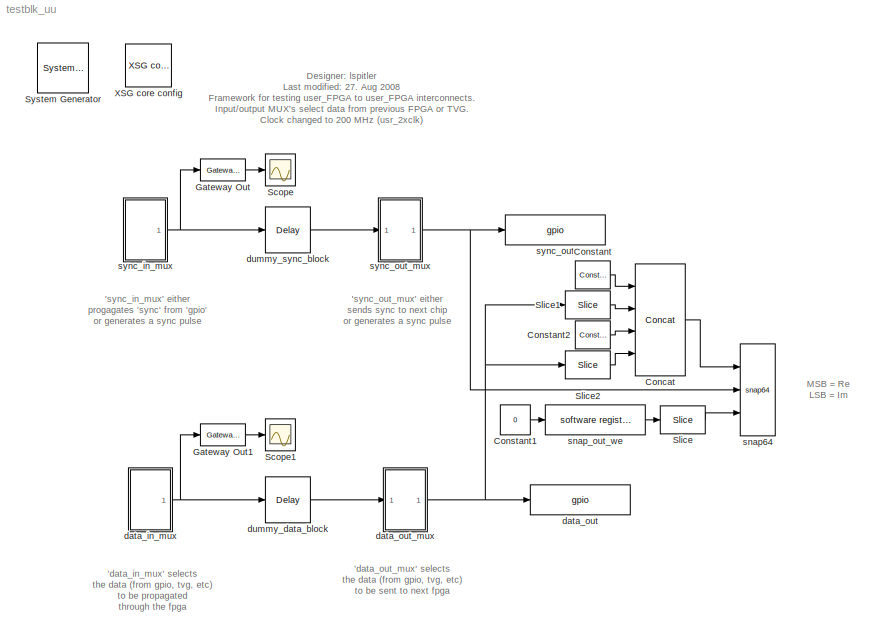
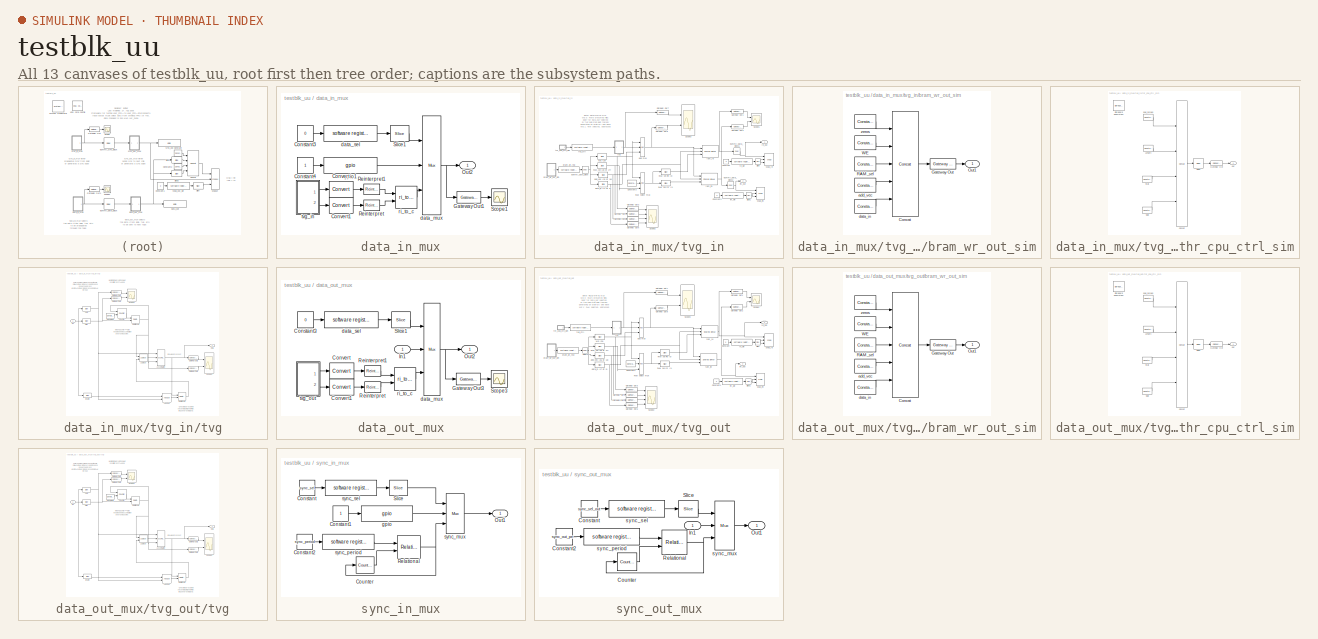
[diagram: thumbnail index - all 13 canvases of the model, root first then tree order]
MODEL testblk_uu
KIND model
BLOCK [Reference]  System Generator  REF=xbsIndex_r3/ System Generator
  AttributesFormatString = System\\nGenerator
  Ports = []
  ShowPortLabels = on
  SourceBlock = xbsIndex_r3/ System Generator
  SourceType = Xilinx System Generator
  Tag = genX
  UserData = DataTag0
  UserDataPersistent = on
  core_generation = According to Block Masks
  dbl_ovrd = According to Block Masks
  deprecated_control = off
  directory = ./testblk_uu/sysgen
  eval_field = 0
  incr_netlist = off
  package = ff1704
  part = xc2vp70
  run_coregen = off
  simulink_period = 1
  speed = -7
  synthesis_tool = XST
  sysclk_period = 5
  testbench = off
  trim_vbits = Everywhere in SubSystem
  xilinxfamily = Virtex2P
BLOCK [Reference] Concat  REF=xbsIndex_r3/Concat
  Ports = [4, 1]
  SourceBlock = xbsIndex_r3/Concat
  SourceType = Xilinx Bus Concatenator
  dbl_ovrd = off
  explicit_period = on
  num_inputs = 4
  period = 1
BLOCK [Reference] Constant  REF=xbsIndex_r3/Constant
  Ports = [0, 1]
  SourceBlock = xbsIndex_r3/Constant
  SourceType = Xilinx Constant Block
  arith_type = Unsigned
  bin_pt = 0
  carry = CIN
  const = 0
  dbl_ovrd = off
  equ = P=C
  explicit_period = on
  inp1 = P
  inp2 = PCIN>>17
  iostate = 0
  n_bits = 14
  opr = +
  opselect = C
  period = 1
BLOCK [Constant] Constant1
  Value = 0
BLOCK [Reference] Constant2  REF=xbsIndex_r3/Constant
  Ports = [0, 1]
  SourceBlock = xbsIndex_r3/Constant
  SourceType = Xilinx Constant Block
  arith_type = Unsigned
  bin_pt = 0
  carry = CIN
  const = 0
  dbl_ovrd = off
  equ = P=C
  explicit_period = on
  inp1 = P
  inp2 = PCIN>>17
  iostate = 0
  n_bits = 14
  opr = +
  opselect = C
  period = 1
BLOCK [Reference] Gateway Out  REF=xbsIndex_r3/Gateway Out
  LOCs = {}
  Ports = [1, 1]
  SourceBlock = xbsIndex_r3/Gateway Out
  SourceType = Xilinx Gateway Out
  arith_type = Boolean
  bin_pt = 6
  hdl_port = on
  locs_specified = off
  nbits = 8
  needs_fixed_name = off
  output_type = Double
  overflow = Wrap
  quantization = Truncate
  show_param = off
  timing_constraint = None
  xl_area = [0, 0, 0, 0, 0, 0, 0]
  xl_use_area = off
BLOCK [Reference] Gateway Out1  REF=xbsIndex_r3/Gateway Out
  LOCs = {}
  Ports = [1, 1]
  SourceBlock = xbsIndex_r3/Gateway Out
  SourceType = Xilinx Gateway Out
  arith_type = Boolean
  bin_pt = 6
  hdl_port = on
  locs_specified = off
  nbits = 8
  needs_fixed_name = off
  output_type = Double
  overflow = Wrap
  quantization = Truncate
  show_param = off
  timing_constraint = None
  xl_area = [0, 0, 0, 0, 0, 0, 0]
  xl_use_area = off
BLOCK [Scope] Scope
  DataFormat = StructureWithTime
  NumInputPorts = 1
  Ports = [1]
  SaveName = ScopeData3
  ZoomMode = xonly
BLOCK [Scope] Scope1
  DataFormat = StructureWithTime
  NumInputPorts = 1
  Ports = [1]
  SaveName = ScopeData5
BLOCK [Reference] Slice  REF=xbsIndex_r3/Slice
  Ports = [1, 1]
  SourceBlock = xbsIndex_r3/Slice
  SourceType = Xilinx Slice Block
  base0 = LSB of Input
  base1 = MSB of Input
  bit0 = 0
  bit1 = 0
  boolean_output = on
  dbl_ovrd = off
  explicit_period = off
  mode = Lower Bit Location + Width
  nbits = 1
  period = 1
BLOCK [Reference] Slice1  REF=xbsIndex_r3/Slice
  Ports = [1, 1]
  SourceBlock = xbsIndex_r3/Slice
  SourceType = Xilinx Slice Block
  base0 = LSB of Input
  base1 = MSB of Input
  bit0 = 0
  bit1 = 0
  boolean_output = off
  dbl_ovrd = off
  explicit_period = on
  mode = Upper Bit Location + Width
  nbits = 18
  period = 1
BLOCK [Reference] Slice2  REF=xbsIndex_r3/Slice
  Ports = [1, 1]
  SourceBlock = xbsIndex_r3/Slice
  SourceType = Xilinx Slice Block
  base0 = LSB of Input
  base1 = MSB of Input
  bit0 = 0
  bit1 = 0
  boolean_output = off
  dbl_ovrd = off
  explicit_period = on
  mode = Lower Bit Location + Width
  nbits = 18
  period = 1
BLOCK [Reference] XSG core config  REF=xps_library/XSG core config  (lib defined in mdl_00b5cec29cd0, mdl_02ab6ecaa3d1, +5 more)
  Ports = []
  ShowPortLabels = on
  SourceBlock = xps_library/XSG core config
  SourceType = xsg core config
  Tag = xps:xsg
  clk_rate = 200
  clk_src = usr_clk2x
  gpio_clk_bit_index = 0
  gpio_clk_io_group = iBOB:sma
  hw_sys = BEE2_usr
  ibob_linux = off
  mpc_type = powerpc405
  sample_period = 1
  synthesis_tool = XST
BLOCK [SubSystem] data_in_mux
  MaskIconFrame = on
  MaskIconOpaque = on
  MaskIconRotate = none
  MaskIconUnits = autoscale
  MaskValueString = 3
  MinAlgLoopOccurrences = off
  Ports = [0, 1]
  RTWSystemCode = Auto
  TreatAsAtomicUnit = off
BLOCK [Constant] data_in_mux/Constant3
  Value = 0
BLOCK [Constant] data_in_mux/Constant4
BLOCK [Reference] data_in_mux/Convert  REF=xbsIndex_r3/Convert
  Ports = [1, 1]
  SourceBlock = xbsIndex_r3/Convert
  SourceType = Xilinx Converter Block
  arith_type = Unsigned
  bin_pt = 0
  dbl_ovrd = off
  explicit_period = on
  inserted_by_tool = off
  latency = 0
  n_bits = 18
  overflow = Wrap
  period = 1
  pipeline = off
  quantization = Truncate
  show_param = off
  xl_area = [0, 0, 0, 0, 0, 0, 0]
  xl_use_area = off
BLOCK [Reference] data_in_mux/Convert1  REF=xbsIndex_r3/Convert
  Ports = [1, 1]
  SourceBlock = xbsIndex_r3/Convert
  SourceType = Xilinx Converter Block
  arith_type = Unsigned
  bin_pt = 0
  dbl_ovrd = off
  explicit_period = on
  inserted_by_tool = off
  latency = 0
  n_bits = 18
  overflow = Wrap
  period = 1
  pipeline = off
  quantization = Truncate
  show_param = off
  xl_area = [0, 0, 0, 0, 0, 0, 0]
  xl_use_area = off
BLOCK [Reference] data_in_mux/Gateway Out1  REF=xbsIndex_r3/Gateway Out
  LOCs = {}
  Ports = [1, 1]
  SourceBlock = xbsIndex_r3/Gateway Out
  SourceType = Xilinx Gateway Out
  arith_type = Boolean
  bin_pt = 6
  hdl_port = on
  locs_specified = off
  nbits = 8
  needs_fixed_name = off
  output_type = Double
  overflow = Wrap
  quantization = Truncate
  show_param = off
  timing_constraint = None
  xl_area = [0, 0, 0, 0, 0, 0, 0]
  xl_use_area = off
BLOCK [Outport] data_in_mux/Out2
  BusOutputAsStruct = off
  IconDisplay = Port number
BLOCK [Reference] data_in_mux/Reinterpret  REF=xbsIndex_r3/Reinterpret
  Ports = [1, 1]
  SourceBlock = xbsIndex_r3/Reinterpret
  SourceType = Xilinx Type Reinterpreting Block
  arith_type = Signed  (2's comp)
  bin_pt = 17
  force_arith_type = on
  force_bin_pt = on
  force_valid = on
BLOCK [Reference] data_in_mux/Reinterpret1  REF=xbsIndex_r3/Reinterpret
  Ports = [1, 1]
  SourceBlock = xbsIndex_r3/Reinterpret
  SourceType = Xilinx Type Reinterpreting Block
  arith_type = Signed  (2's comp)
  bin_pt = 17
  force_arith_type = on
  force_bin_pt = on
  force_valid = on
BLOCK [Scope] data_in_mux/Scope1
  DataFormat = StructureWithTime
  NumInputPorts = 1
  Ports = [1]
  SaveName = ScopeData8
BLOCK [Reference] data_in_mux/Slice1  REF=xbsIndex_r3/Slice
  Ports = [1, 1]
  SourceBlock = xbsIndex_r3/Slice
  SourceType = Xilinx Slice Block
  base0 = LSB of Input
  base1 = MSB of Input
  bit0 = 0
  bit1 = 0
  boolean_output = off
  dbl_ovrd = off
  explicit_period = off
  mode = Lower Bit Location + Width
  nbits = 1
  period = 1
BLOCK [Reference] data_in_mux/data_mux  REF=xbsIndex_r3/Mux
  Ports = [3, 1]
  SourceBlock = xbsIndex_r3/Mux
  SourceType = Xilinx Multiplexer Block
  arith_type = Signed  (2's comp)
  bin_pt = 2
  dbl_ovrd = off
  en = off
  explicit_period = on
  gen_core = off
  inputs = 2
  latency = 0
  mux_type = off
  n_bits = 8
  overflow = Wrap
  period = 1
  precision = Full
  quantization = Truncate
  show_param = off
  use_rpm = off
  xl_area = [0, 0, 0, 0, 0, 0, 0]
  xl_use_area = off
BLOCK [Reference] data_in_mux/data_sel  REF=xps_library/software register  (lib defined in mdl_00b5cec29cd0, mdl_02ab6ecaa3d1, +5 more)
  Ports = [1, 1]
  ShowPortLabels = on
  SourceBlock = xps_library/software register
  Tag = xps:sw_reg
  arith_type = Unsigned
  bin_pt = 0
  bitwidth = 32
  gw_name = testblk_uu_data_in_mux_data_sel_user_data_out
  io_dir = From Processor
  sample_period = 1
BLOCK [Reference] data_in_mux/gpio1  REF=xps_library/gpio  (lib defined in mdl_00b5cec29cd0, mdl_02ab6ecaa3d1, +5 more)
  Ports = [1, 1]
  ShowPortLabels = on
  SourceBlock = xps_library/gpio
  SourceType = gpio
  Tag = xps:gpio
  arith_type = Unsigned
  bin_pt = 0
  bit_index = [0:35]
  bitwidth = 36
  io_dir = in
  io_group = BEE2_usr:rightlink
  reg_clk_phase = 0
  reg_iob = off
  sample_period = 1
  termination = None
  use_ddr = off
  use_single_ended = off
BLOCK [Reference] data_in_mux/ri_to_c  REF=casper_library/Misc/ri_to_c  (lib defined in mdl_138b2fc3435f, mdl_4ed325b712b3, +2 more)
  Ports = [2, 1]
  ShowPortLabels = on
  SourceBlock = casper_library/Misc/ri_to_c
  SourceType = ri_to_c
  UserData = DataTag1
  UserDataPersistent = on
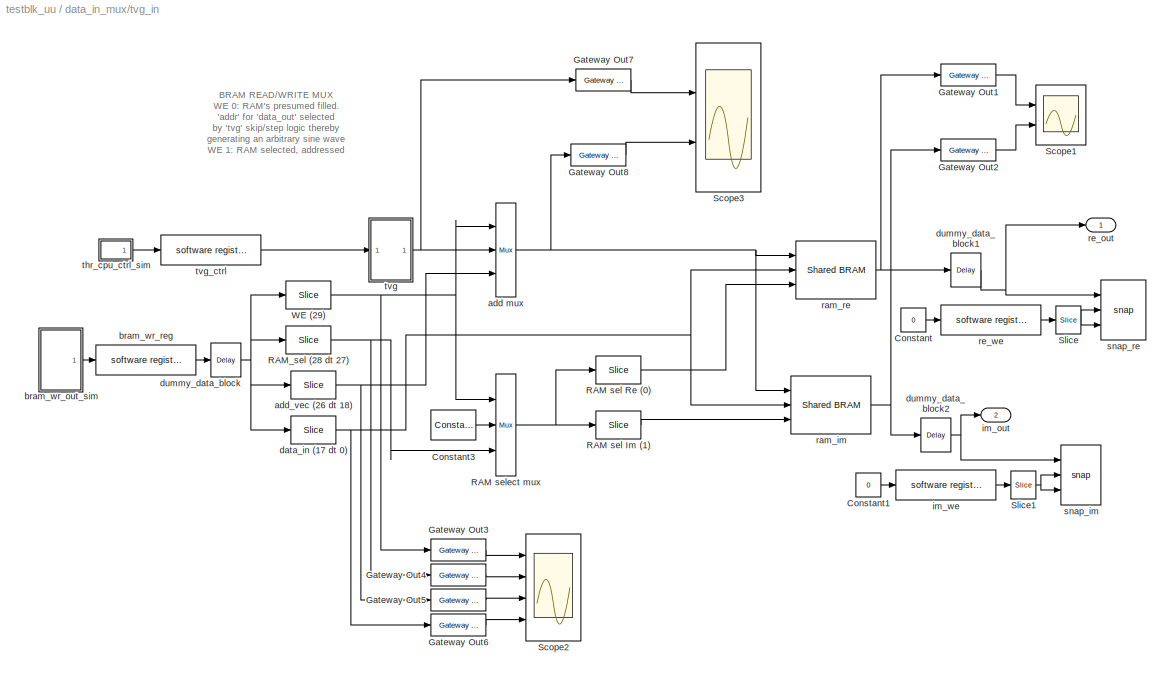
BLOCK [SubSystem] data_in_mux/tvg_in
  MinAlgLoopOccurrences = off
  Ports = [0, 2]
  RTWSystemCode = Auto
  TreatAsAtomicUnit = off
BLOCK [Constant] data_in_mux/tvg_in/Constant
  Value = 0
BLOCK [Constant] data_in_mux/tvg_in/Constant1
  Value = 0
BLOCK [Reference] data_in_mux/tvg_in/Constant3  REF=xbsIndex_r3/Constant
  Ports = [0, 1]
  SourceBlock = xbsIndex_r3/Constant
  SourceType = Xilinx Constant Block
  arith_type = Unsigned
  bin_pt = 0
  carry = CIN
  const = 0
  dbl_ovrd = off
  equ = P=C
  explicit_period = on
  inp1 = P
  inp2 = PCIN>>17
  iostate = 0
  n_bits = 4
  opr = +
  opselect = C
  period = 1
BLOCK [Reference] data_in_mux/tvg_in/Gateway Out1  REF=xbsIndex_r3/Gateway Out
  LOCs = {}
  Ports = [1, 1]
  SourceBlock = xbsIndex_r3/Gateway Out
  SourceType = Xilinx Gateway Out
  arith_type = Boolean
  bin_pt = 6
  hdl_port = on
  locs_specified = off
  nbits = 8
  needs_fixed_name = off
  output_type = Double
  overflow = Wrap
  quantization = Truncate
  show_param = off
  timing_constraint = None
  xl_area = [0, 0, 0, 0, 0, 0, 0]
  xl_use_area = off
BLOCK [Reference] data_in_mux/tvg_in/Gateway Out2  REF=xbsIndex_r3/Gateway Out
  LOCs = {}
  Ports = [1, 1]
  SourceBlock = xbsIndex_r3/Gateway Out
  SourceType = Xilinx Gateway Out
  arith_type = Boolean
  bin_pt = 6
  hdl_port = on
  locs_specified = off
  nbits = 8
  needs_fixed_name = off
  output_type = Double
  overflow = Wrap
  quantization = Truncate
  show_param = off
  timing_constraint = None
  xl_area = [0, 0, 0, 0, 0, 0, 0]
  xl_use_area = off
BLOCK [Reference] data_in_mux/tvg_in/Gateway Out3  REF=xbsIndex_r3/Gateway Out
  LOCs = {}
  Ports = [1, 1]
  SourceBlock = xbsIndex_r3/Gateway Out
  SourceType = Xilinx Gateway Out
  arith_type = Boolean
  bin_pt = 6
  hdl_port = on
  locs_specified = off
  nbits = 8
  needs_fixed_name = off
  output_type = Double
  overflow = Wrap
  quantization = Truncate
  show_param = off
  timing_constraint = None
  xl_area = [0, 0, 0, 0, 0, 0, 0]
  xl_use_area = off
BLOCK [Reference] data_in_mux/tvg_in/Gateway Out4  REF=xbsIndex_r3/Gateway Out
  LOCs = {}
  Ports = [1, 1]
  SourceBlock = xbsIndex_r3/Gateway Out
  SourceType = Xilinx Gateway Out
  arith_type = Boolean
  bin_pt = 6
  hdl_port = on
  locs_specified = off
  nbits = 8
  needs_fixed_name = off
  output_type = Double
  overflow = Wrap
  quantization = Truncate
  show_param = off
  timing_constraint = None
  xl_area = [0, 0, 0, 0, 0, 0, 0]
  xl_use_area = off
BLOCK [Reference] data_in_mux/tvg_in/Gateway Out5  REF=xbsIndex_r3/Gateway Out
  LOCs = {}
  Ports = [1, 1]
  SourceBlock = xbsIndex_r3/Gateway Out
  SourceType = Xilinx Gateway Out
  arith_type = Boolean
  bin_pt = 6
  hdl_port = on
  locs_specified = off
  nbits = 8
  needs_fixed_name = off
  output_type = Double
  overflow = Wrap
  quantization = Truncate
  show_param = off
  timing_constraint = None
  xl_area = [0, 0, 0, 0, 0, 0, 0]
  xl_use_area = off
BLOCK [Reference] data_in_mux/tvg_in/Gateway Out6  REF=xbsIndex_r3/Gateway Out
  LOCs = {}
  Ports = [1, 1]
  SourceBlock = xbsIndex_r3/Gateway Out
  SourceType = Xilinx Gateway Out
  arith_type = Boolean
  bin_pt = 6
  hdl_port = on
  locs_specified = off
  nbits = 8
  needs_fixed_name = off
  output_type = Double
  overflow = Wrap
  quantization = Truncate
  show_param = off
  timing_constraint = None
  xl_area = [0, 0, 0, 0, 0, 0, 0]
  xl_use_area = off
BLOCK [Reference] data_in_mux/tvg_in/Gateway Out7  REF=xbsIndex_r3/Gateway Out
  LOCs = {}
  Ports = [1, 1]
  SourceBlock = xbsIndex_r3/Gateway Out
  SourceType = Xilinx Gateway Out
  arith_type = Boolean
  bin_pt = 6
  hdl_port = on
  locs_specified = off
  nbits = 8
  needs_fixed_name = off
  output_type = Double
  overflow = Wrap
  quantization = Truncate
  show_param = off
  timing_constraint = None
  xl_area = [0, 0, 0, 0, 0, 0, 0]
  xl_use_area = off
BLOCK [Reference] data_in_mux/tvg_in/Gateway Out8  REF=xbsIndex_r3/Gateway Out
  LOCs = {}
  Ports = [1, 1]
  SourceBlock = xbsIndex_r3/Gateway Out
  SourceType = Xilinx Gateway Out
  arith_type = Boolean
  bin_pt = 6
  hdl_port = on
  locs_specified = off
  nbits = 8
  needs_fixed_name = off
  output_type = Double
  overflow = Wrap
  quantization = Truncate
  show_param = off
  timing_constraint = None
  xl_area = [0, 0, 0, 0, 0, 0, 0]
  xl_use_area = off
BLOCK [Reference] data_in_mux/tvg_in/RAM sel  Re (0)  REF=xbsIndex_r3/Slice
  Ports = [1, 1]
  SourceBlock = xbsIndex_r3/Slice
  SourceType = Xilinx Slice Block
  base0 = LSB of Input
  base1 = MSB of Input
  bit0 = 0
  bit1 = 0
  boolean_output = on
  dbl_ovrd = off
  explicit_period = on
  mode = Lower Bit Location + Width
  nbits = 1
  period = 1
BLOCK [Reference] data_in_mux/tvg_in/RAM sel Im (1)  REF=xbsIndex_r3/Slice
  Ports = [1, 1]
  SourceBlock = xbsIndex_r3/Slice
  SourceType = Xilinx Slice Block
  base0 = LSB of Input
  base1 = MSB of Input
  bit0 = 1
  bit1 = 0
  boolean_output = on
  dbl_ovrd = off
  explicit_period = on
  mode = Lower Bit Location + Width
  nbits = 1
  period = 1
BLOCK [Reference] data_in_mux/tvg_in/RAM select mux  REF=xbsIndex_r3/Mux
  Ports = [3, 1]
  SourceBlock = xbsIndex_r3/Mux
  SourceType = Xilinx Multiplexer Block
  arith_type = Signed  (2's comp)
  bin_pt = 2
  dbl_ovrd = off
  en = off
  explicit_period = on
  gen_core = off
  inputs = 2
  latency = 0
  mux_type = off
  n_bits = 8
  overflow = Wrap
  period = 1
  precision = Full
  quantization = Truncate
  show_param = off
  use_rpm = off
  xl_area = [0, 0, 0, 0, 0, 0, 0]
  xl_use_area = off
BLOCK [Reference] data_in_mux/tvg_in/RAM_sel (28 dt 27)  REF=xbsIndex_r3/Slice
  Ports = [1, 1]
  SourceBlock = xbsIndex_r3/Slice
  SourceType = Xilinx Slice Block
  base0 = LSB of Input
  base1 = MSB of Input
  bit0 = 27
  bit1 = 10
  boolean_output = off
  dbl_ovrd = off
  explicit_period = on
  mode = Lower Bit Location + Width
  nbits = 2
  period = 1
BLOCK [Scope] data_in_mux/tvg_in/Scope1
  DataFormat = StructureWithTime
  NumInputPorts = 2
  Ports = [2]
  SaveName = ScopeData2
  YMax = 5~5
  YMin = -5~-5
  ZoomMode = yonly
BLOCK [Scope] data_in_mux/tvg_in/Scope2
  DataFormat = StructureWithTime
  NumInputPorts = 4
  Ports = [4]
  SaveName = ScopeData1
  YMax = 5~5~5~5
  YMin = -5~-5~-5~-5
  ZoomMode = xonly
BLOCK [Scope] data_in_mux/tvg_in/Scope3
  DataFormat = StructureWithTime
  NumInputPorts = 2
  Ports = [2]
  SaveName = ScopeData3
  YMax = 5~5
  YMin = -5~-5
  ZoomMode = yonly
BLOCK [Reference] data_in_mux/tvg_in/Slice  REF=xbsIndex_r3/Slice
  Ports = [1, 1]
  SourceBlock = xbsIndex_r3/Slice
  SourceType = Xilinx Slice Block
  base0 = LSB of Input
  base1 = MSB of Input
  bit0 = 0
  bit1 = 0
  boolean_output = on
  dbl_ovrd = off
  explicit_period = off
  mode = Lower Bit Location + Width
  nbits = 1
  period = 1
BLOCK [Reference] data_in_mux/tvg_in/Slice1  REF=xbsIndex_r3/Slice
  Ports = [1, 1]
  SourceBlock = xbsIndex_r3/Slice
  SourceType = Xilinx Slice Block
  base0 = LSB of Input
  base1 = MSB of Input
  bit0 = 0
  bit1 = 0
  boolean_output = on
  dbl_ovrd = off
  explicit_period = off
  mode = Lower Bit Location + Width
  nbits = 1
  period = 1
BLOCK [Reference] data_in_mux/tvg_in/WE (29)  REF=xbsIndex_r3/Slice
  Ports = [1, 1]
  SourceBlock = xbsIndex_r3/Slice
  SourceType = Xilinx Slice Block
  base0 = LSB of Input
  base1 = MSB of Input
  bit0 = 29
  bit1 = 10
  boolean_output = off
  dbl_ovrd = off
  explicit_period = on
  mode = Lower Bit Location + Width
  nbits = 1
  period = 1
BLOCK [Reference] data_in_mux/tvg_in/add mux  REF=xbsIndex_r3/Mux
  Ports = [3, 1]
  SourceBlock = xbsIndex_r3/Mux
  SourceType = Xilinx Multiplexer Block
  arith_type = Signed  (2's comp)
  bin_pt = 2
  dbl_ovrd = off
  en = off
  explicit_period = on
  gen_core = off
  inputs = 2
  latency = 0
  mux_type = off
  n_bits = 8
  overflow = Wrap
  period = 1
  precision = Full
  quantization = Truncate
  show_param = off
  use_rpm = off
  xl_area = [0, 0, 0, 0, 0, 0, 0]
  xl_use_area = off
BLOCK [Reference] data_in_mux/tvg_in/add_vec (26 dt 18)  REF=xbsIndex_r3/Slice
  Ports = [1, 1]
  SourceBlock = xbsIndex_r3/Slice
  SourceType = Xilinx Slice Block
  base0 = LSB of Input
  base1 = MSB of Input
  bit0 = 18
  bit1 = 0
  boolean_output = off
  dbl_ovrd = off
  explicit_period = on
  mode = Lower Bit Location + Width
  nbits = 9
  period = 1
BLOCK [SubSystem] data_in_mux/tvg_in/bram_wr_out_sim
  MaskCallbackString = |||
  MaskEnableString = on,on,on,on
  MaskIconFrame = on
  MaskIconOpaque = on
  MaskIconRotate = none
  MaskIconUnits = autoscale
  MaskPromptString = Write enable|RAM selector (1 = Re; 2 = Im; 3 = both)|RAM address|Data in
  MaskStyleString = edit,edit,edit,edit
  MaskTabNameString = ,,,
  MaskToolTipString = on,on,on,on
  MaskTunableValueString = on,on,on,on
  MaskValueString = 0|3|512|32
  MaskVarAliasString = ,,,
  MaskVariables = we_enable=@1;ram_sel=@2;add_vec=@3;data_in=@4;
  MaskVisibilityString = on,on,on,on
  MinAlgLoopOccurrences = off
  Ports = [0, 1]
  RTWSystemCode = Auto
  TreatAsAtomicUnit = off
BLOCK [Reference] data_in_mux/tvg_in/bram_wr_out_sim/Concat  REF=xbsIndex_r3/Concat
  Ports = [5, 1]
  SourceBlock = xbsIndex_r3/Concat
  SourceType = Xilinx Bus Concatenator
  dbl_ovrd = off
  explicit_period = off
  num_inputs = 5
  period = 1
BLOCK [Reference] data_in_mux/tvg_in/bram_wr_out_sim/Gateway Out  REF=xbsIndex_r3/Gateway Out
  LOCs = {}
  Ports = [1, 1]
  SourceBlock = xbsIndex_r3/Gateway Out
  SourceType = Xilinx Gateway Out
  arith_type = Boolean
  bin_pt = 6
  hdl_port = on
  locs_specified = off
  nbits = 8
  needs_fixed_name = off
  output_type = Double
  overflow = Wrap
  quantization = Truncate
  show_param = off
  timing_constraint = None
  xl_area = [0, 0, 0, 0, 0, 0, 0]
  xl_use_area = off
BLOCK [Outport] data_in_mux/tvg_in/bram_wr_out_sim/Out1
  BusOutputAsStruct = off
  IconDisplay = Port number
BLOCK [Reference] data_in_mux/tvg_in/bram_wr_out_sim/RAM_sel  REF=xbsIndex_r3/Constant
  Ports = [0, 1]
  SourceBlock = xbsIndex_r3/Constant
  SourceType = Xilinx Constant Block
  arith_type = Unsigned
  bin_pt = 0
  carry = CIN
  const = ram_sel
  dbl_ovrd = off
  equ = P=C
  explicit_period = on
  inp1 = P
  inp2 = PCIN>>17
  iostate = 0
  n_bits = 2
  opr = +
  opselect = C
  period = 1
BLOCK [Reference] data_in_mux/tvg_in/bram_wr_out_sim/WE  REF=xbsIndex_r3/Constant
  Ports = [0, 1]
  SourceBlock = xbsIndex_r3/Constant
  SourceType = Xilinx Constant Block
  arith_type = Unsigned
  bin_pt = 0
  carry = CIN
  const = we_enable
  dbl_ovrd = off
  equ = P=C
  explicit_period = on
  inp1 = P
  inp2 = PCIN>>17
  iostate = 0
  n_bits = 1
  opr = +
  opselect = C
  period = 1
BLOCK [Reference] data_in_mux/tvg_in/bram_wr_out_sim/add_vec  REF=xbsIndex_r3/Constant
  Ports = [0, 1]
  SourceBlock = xbsIndex_r3/Constant
  SourceType = Xilinx Constant Block
  arith_type = Unsigned
  bin_pt = 0
  carry = CIN
  const = add_vec
  dbl_ovrd = off
  equ = P=C
  explicit_period = on
  inp1 = P
  inp2 = PCIN>>17
  iostate = 0
  n_bits = 9
  opr = +
  opselect = C
  period = 1
BLOCK [Reference] data_in_mux/tvg_in/bram_wr_out_sim/data_in  REF=xbsIndex_r3/Constant
  Ports = [0, 1]
  SourceBlock = xbsIndex_r3/Constant
  SourceType = Xilinx Constant Block
  arith_type = Unsigned
  bin_pt = 0
  carry = CIN
  const = data_in
  dbl_ovrd = off
  equ = P=C
  explicit_period = on
  inp1 = P
  inp2 = PCIN>>17
  iostate = 0
  n_bits = 18
  opr = +
  opselect = C
  period = 1
BLOCK [Reference] data_in_mux/tvg_in/bram_wr_out_sim/zeros  REF=xbsIndex_r3/Constant
  Ports = [0, 1]
  SourceBlock = xbsIndex_r3/Constant
  SourceType = Xilinx Constant Block
  arith_type = Unsigned
  bin_pt = 0
  carry = CIN
  const = 0
  dbl_ovrd = off
  equ = P=C
  explicit_period = on
  inp1 = P
  inp2 = PCIN>>17
  iostate = 0
  n_bits = 2
  opr = +
  opselect = C
  period = 1
BLOCK [Reference] data_in_mux/tvg_in/bram_wr_reg  REF=xps_library/software register  (lib defined in mdl_00b5cec29cd0, mdl_02ab6ecaa3d1, +5 more)
  Ports = [1, 1]
  ShowPortLabels = on
  SourceBlock = xps_library/software register
  Tag = xps:sw_reg
  arith_type = Unsigned
  bin_pt = 0
  bitwidth = 32
  gw_name = testblk_uu_data_in_mux_tvg_in_bram_wr_reg_user_data_out
  io_dir = From Processor
  sample_period = 1
BLOCK [Reference] data_in_mux/tvg_in/data_in (17 dt 0)  REF=xbsIndex_r3/Slice
  Ports = [1, 1]
  SourceBlock = xbsIndex_r3/Slice
  SourceType = Xilinx Slice Block
  base0 = LSB of Input
  base1 = MSB of Input
  bit0 = 0
  bit1 = 0
  boolean_output = off
  dbl_ovrd = off
  explicit_period = on
  mode = Lower Bit Location + Width
  nbits = 18
  period = 1
BLOCK [Reference] data_in_mux/tvg_in/dummy_data_block  REF=xbsIndex_r3/Delay
  Ports = [1, 1]
  SourceBlock = xbsIndex_r3/Delay
  SourceType = Xilinx Delay Block
  accept_only_valid = off
  dbl_ovrd = off
  en = off
  explicit_period = on
  init_zero = on
  latency = 1
  period = 1
  reg_retiming = on
  show_param = off
  xl_area = [0, 0, 0, 0, 0, 0, 0]
  xl_use_area = off
BLOCK [Reference] data_in_mux/tvg_in/dummy_data_block1  REF=xbsIndex_r3/Delay
  Ports = [1, 1]
  SourceBlock = xbsIndex_r3/Delay
  SourceType = Xilinx Delay Block
  accept_only_valid = off
  dbl_ovrd = off
  en = off
  explicit_period = on
  init_zero = on
  latency = 1
  period = 1
  reg_retiming = on
  show_param = off
  xl_area = [0, 0, 0, 0, 0, 0, 0]
  xl_use_area = off
BLOCK [Reference] data_in_mux/tvg_in/dummy_data_block2  REF=xbsIndex_r3/Delay
  Ports = [1, 1]
  SourceBlock = xbsIndex_r3/Delay
  SourceType = Xilinx Delay Block
  accept_only_valid = off
  dbl_ovrd = off
  en = off
  explicit_period = on
  init_zero = on
  latency = 1
  period = 1
  reg_retiming = on
  show_param = off
  xl_area = [0, 0, 0, 0, 0, 0, 0]
  xl_use_area = off
BLOCK [Outport] data_in_mux/tvg_in/im_out
  BusOutputAsStruct = off
  IconDisplay = Port number
  Port = 2
BLOCK [Reference] data_in_mux/tvg_in/im_we  REF=xps_library/software register  (lib defined in mdl_00b5cec29cd0, mdl_02ab6ecaa3d1, +5 more)
  Ports = [1, 1]
  ShowPortLabels = on
  SourceBlock = xps_library/software register
  Tag = xps:sw_reg
  arith_type = Unsigned
  bin_pt = 0
  bitwidth = 32
  gw_name = testblk_uu_data_in_mux_tvg_in_im_we_user_data_out
  io_dir = From Processor
  sample_period = 1
BLOCK [Reference] data_in_mux/tvg_in/ram_im  REF=xps_library/Shared BRAM  (lib defined in mdl_00b5cec29cd0, mdl_02ab6ecaa3d1, +5 more)
  Ports = [3, 1]
  ShowPortLabels = on
  SourceBlock = xps_library/Shared BRAM
  Tag = xps:bram
  addr_width = 11
  arith_type = Signed  (2's comp)
  data_bin_pt = 0
  data_width = 32
  init_vals = [1:2^11]
  sample_rate = 1
BLOCK [Reference] data_in_mux/tvg_in/ram_re  REF=xps_library/Shared BRAM  (lib defined in mdl_00b5cec29cd0, mdl_02ab6ecaa3d1, +5 more)
  Ports = [3, 1]
  ShowPortLabels = on
  SourceBlock = xps_library/Shared BRAM
  Tag = xps:bram
  addr_width = 11
  arith_type = Signed  (2's comp)
  data_bin_pt = 0
  data_width = 32
  init_vals = [1:2^11]
  sample_rate = 1
BLOCK [Outport] data_in_mux/tvg_in/re_out
  BusOutputAsStruct = off
  IconDisplay = Port number
BLOCK [Reference] data_in_mux/tvg_in/re_we  REF=xps_library/software register  (lib defined in mdl_00b5cec29cd0, mdl_02ab6ecaa3d1, +5 more)
  Ports = [1, 1]
  ShowPortLabels = on
  SourceBlock = xps_library/software register
  Tag = xps:sw_reg
  arith_type = Unsigned
  bin_pt = 0
  bitwidth = 32
  gw_name = testblk_uu_data_in_mux_tvg_in_re_we_user_data_out
  io_dir = From Processor
  sample_period = 1
BLOCK [Reference] data_in_mux/tvg_in/snap_im  REF=casper_library/Scopes/snap  (lib defined in mdl_138b2fc3435f, mdl_4ed325b712b3, +2 more)
  Ports = [3]
  ShowPortLabels = on
  SourceBlock = casper_library/Scopes/snap
  SourceType = snap
  nsamples = 11
BLOCK [Reference] data_in_mux/tvg_in/snap_re  REF=casper_library/Scopes/snap  (lib defined in mdl_138b2fc3435f, mdl_4ed325b712b3, +2 more)
  Ports = [3]
  ShowPortLabels = on
  SourceBlock = casper_library/Scopes/snap
  SourceType = snap
  nsamples = 11
BLOCK [SubSystem] data_in_mux/tvg_in/thr_cpu_ctrl_sim
  MaskCallbackString = ||
  MaskDescription = Mux Data for CT and FFT Syncs:\n\n0 -> Interchip Connection\n1 -> User Generated External Sync\n2 -> Periodic Sync Generator\n3 -> Periodic Sync Generator (Same as 2)\n\nMux Data for CT and FFT Inputs:\n\n0 -> Interchip Connection\n1 -> Test Vector Generator (TVG)\n2 -> All Zeroes (0's)\n3 -> All Ones (1's)
  MaskEnableString = on,on,on
  MaskIconFrame = on
  MaskIconOpaque = on
  MaskIconRotate = none
  MaskIconUnits = autoscale
  MaskPromptString = Skip|Stall|Length
  MaskStyleString = edit,edit,edit
  MaskTabNameString = ,,
  MaskToolTipString = on,on,on
  MaskTunableValueString = on,on,on
  MaskValueString = 1|2|27
  MaskVarAliasString = ,,
  MaskVariables = tvg_skip=@1;tvg_stall=@2;tvg_length=@3;
  MaskVisibilityString = on,on,on
  MinAlgLoopOccurrences = off
  Ports = [0, 1]
  RTWSystemCode = Auto
  TreatAsAtomicUnit = off
BLOCK [Reference] data_in_mux/tvg_in/thr_cpu_ctrl_sim/Concat  REF=xbsIndex_r3/Concat
  Ports = [4, 1]
  SourceBlock = xbsIndex_r3/Concat
  SourceType = Xilinx Bus Concatenator
  dbl_ovrd = off
  explicit_period = off
  num_inputs = 4
  period = 1
BLOCK [Reference] data_in_mux/tvg_in/thr_cpu_ctrl_sim/Delay  REF=xbsIndex_r3/Delay
  Ports = [1, 1]
  SourceBlock = xbsIndex_r3/Delay
  SourceType = Xilinx Delay Block
  accept_only_valid = off
  dbl_ovrd = off
  en = off
  explicit_period = off
  init_zero = on
  latency = 1
  period = 1
  reg_retiming = off
  show_param = off
  xl_area = [0, 0, 0, 0, 0, 0, 0]
  xl_use_area = off
BLOCK [Reference] data_in_mux/tvg_in/thr_cpu_ctrl_sim/Disregard Subsystem  REF=xbsIndex_r3/Disregard Subsystem
  AttributesFormatString = Disregard Subsystem\\nFor Generation
  Ports = []
  ShowPortLabels = on
  SourceBlock = xbsIndex_r3/Disregard Subsystem
  SourceType = Xilinx Disregard Subsystem For Generation
  Tag = discardX
BLOCK [Reference] data_in_mux/tvg_in/thr_cpu_ctrl_sim/Gateway Out  REF=xbsIndex_r3/Gateway Out
  LOCs = {}
  Ports = [1, 1]
  SourceBlock = xbsIndex_r3/Gateway Out
  SourceType = Xilinx Gateway Out
  arith_type = Boolean
  bin_pt = 6
  hdl_port = off
  locs_specified = off
  nbits = 8
  needs_fixed_name = off
  output_type = Double
  overflow = Wrap
  quantization = Truncate
  show_param = off
  timing_constraint = None
  xl_area = [0, 0, 0, 0, 0, 0, 0]
  xl_use_area = off
BLOCK [Reference] data_in_mux/tvg_in/thr_cpu_ctrl_sim/Length  REF=xbsIndex_r3/Constant
  Ports = [0, 1]
  SourceBlock = xbsIndex_r3/Constant
  SourceType = Xilinx Constant Block
  arith_type = Unsigned
  bin_pt = 0
  carry = CIN
  const = tvg_length
  dbl_ovrd = off
  equ = P=C
  explicit_period = on
  inp1 = P
  inp2 = PCIN>>17
  iostate = 0
  n_bits = 10
  opr = +
  opselect = C
  period = 1
BLOCK [Reference] data_in_mux/tvg_in/thr_cpu_ctrl_sim/Skip	  REF=xbsIndex_r3/Constant
  Ports = [0, 1]
  SourceBlock = xbsIndex_r3/Constant
  SourceType = Xilinx Constant Block
  arith_type = Unsigned
  bin_pt = 0
  carry = CIN
  const = tvg_skip
  dbl_ovrd = off
  equ = P=C
  explicit_period = on
  inp1 = P
  inp2 = PCIN>>17
  iostate = 0
  n_bits = 10
  opr = +
  opselect = C
  period = 1
BLOCK [Reference] data_in_mux/tvg_in/thr_cpu_ctrl_sim/Stall  REF=xbsIndex_r3/Constant
  Ports = [0, 1]
  SourceBlock = xbsIndex_r3/Constant
  SourceType = Xilinx Constant Block
  arith_type = Unsigned
  bin_pt = 0
  carry = CIN
  const = tvg_stall
  dbl_ovrd = off
  equ = P=C
  explicit_period = on
  inp1 = P
  inp2 = PCIN>>17
  iostate = 0
  n_bits = 10
  opr = +
  opselect = C
  period = 1
BLOCK [Outport] data_in_mux/tvg_in/thr_cpu_ctrl_sim/out
  BusOutputAsStruct = off
  IconDisplay = Port number
BLOCK [Reference] data_in_mux/tvg_in/thr_cpu_ctrl_sim/pad_zeroes  REF=xbsIndex_r3/Constant
  Ports = [0, 1]
  SourceBlock = xbsIndex_r3/Constant
  SourceType = Xilinx Constant Block
  arith_type = Unsigned
  bin_pt = 0
  carry = CIN
  const = 0
  dbl_ovrd = off
  equ = P=C
  explicit_period = on
  inp1 = P
  inp2 = PCIN>>17
  iostate = 0
  n_bits = 2
  opr = +
  opselect = C
  period = 1
BLOCK [SubSystem] data_in_mux/tvg_in/tvg
  MaskCallbackString = ||
  MaskEnableString = on,on,on
  MaskIconFrame = on
  MaskIconOpaque = on
  MaskIconRotate = none
  MaskIconUnits = autoscale
  MaskPromptString = Skip|Stall|Length
  MaskStyleString = edit,edit,edit
  MaskTabNameString = ,,
  MaskToolTipString = on,on,on
  MaskTunableValueString = on,on,on
  MaskType = Test Vector Generator(TVG)
  MaskValueString = 1|1|512
  MaskVarAliasString = ,,
  MaskVariables = tvg_skip=@1;tvg_stall=@2;tvg_length=@3;
  MaskVisibilityString = on,on,on
  MinAlgLoopOccurrences = off
  Ports = [1, 1]
  RTWSystemCode = Auto
  TreatAsAtomicUnit = off
BLOCK [Reference] data_in_mux/tvg_in/tvg/Accumulator  REF=xbsIndex_r3/Accumulator
  Ports = [3, 1]
  SourceBlock = xbsIndex_r3/Accumulator
  SourceType = Xilinx Accumulator
  dbl_ovrd = off
  en = on
  explicit_period = on
  gen_core = off
  hasbypass = off
  n_bits = 10
  operation = Add
  overflow = Wrap
  period = 1
  rst = on
  scale = 1
  show_param = off
  use_rpm = on
  xl_area = [0, 0, 0, 0, 0, 0, 0]
  xl_use_area = off
BLOCK [Reference] data_in_mux/tvg_in/tvg/AddSub  REF=xbsIndex_r3/AddSub
  Ports = [2, 1]
  SourceBlock = xbsIndex_r3/AddSub
  SourceType = Xilinx Adder/Subtractor
  arith_type = Unsigned
  bin_pt = 2
  dbl_ovrd = off
  en = off
  explicit_period = on
  gen_core = off
  latency = 1
  mode = Subtraction
  n_bits = 8
  overflow = Wrap
  period = 1
  pipeline = off
  precision = Full
  quantization = Truncate
  show_param = off
  use_carryin = off
  use_carryout = off
  use_core = on
  use_rpm = on
  xl_area = [0, 0, 0, 0, 0, 0, 0]
  xl_use_area = off
BLOCK [Reference] data_in_mux/tvg_in/tvg/Constant1  REF=xbsIndex_r3/Constant
  Ports = [0, 1]
  SourceBlock = xbsIndex_r3/Constant
  SourceType = Xilinx Constant Block
  arith_type = Unsigned
  bin_pt = 0
  carry = CIN
  const = 1
  dbl_ovrd = off
  equ = P=C
  explicit_period = on
  inp1 = P
  inp2 = PCIN>>17
  iostate = 0
  n_bits = 10
  opr = +
  opselect = C
  period = 1
BLOCK [Reference] data_in_mux/tvg_in/tvg/Counter  REF=xbsIndex_r3/Counter
  Ports = [2, 1]
  SourceBlock = xbsIndex_r3/Counter
  SourceType = Xilinx Counter Block
  arith_type = Unsigned
  bin_pt = 0
  cnt_by_val = 1
  cnt_to = inf
  cnt_type = Free Running
  dbl_ovrd = off
  en = off
  explicit_period = on
  gen_core = off
  load_pin = on
  n_bits = 10
  operation = Up
  period = 1
  rst = off
  show_param = off
  start_count = 0
  use_rpm = on
  xl_area = [0, 0, 0, 0, 0, 0, 0]
  xl_use_area = off
BLOCK [Reference] data_in_mux/tvg_in/tvg/Gateway Out1  REF=xbsIndex_r3/Gateway Out
  LOCs = {}
  Ports = [1, 1]
  SourceBlock = xbsIndex_r3/Gateway Out
  SourceType = Xilinx Gateway Out
  arith_type = Boolean
  bin_pt = 6
  hdl_port = on
  locs_specified = off
  nbits = 8
  needs_fixed_name = off
  output_type = Double
  overflow = Wrap
  quantization = Truncate
  show_param = off
  timing_constraint = None
  xl_area = [0, 0, 0, 0, 0, 0, 0]
  xl_use_area = off
BLOCK [Reference] data_in_mux/tvg_in/tvg/Gateway Out2  REF=xbsIndex_r3/Gateway Out
  LOCs = {}
  Ports = [1, 1]
  SourceBlock = xbsIndex_r3/Gateway Out
  SourceType = Xilinx Gateway Out
  arith_type = Boolean
  bin_pt = 6
  hdl_port = on
  locs_specified = off
  nbits = 8
  needs_fixed_name = off
  output_type = Double
  overflow = Wrap
  quantization = Truncate
  show_param = off
  timing_constraint = None
  xl_area = [0, 0, 0, 0, 0, 0, 0]
  xl_use_area = off
BLOCK [Reference] data_in_mux/tvg_in/tvg/Gateway Out3  REF=xbsIndex_r3/Gateway Out
  LOCs = {}
  Ports = [1, 1]
  SourceBlock = xbsIndex_r3/Gateway Out
  SourceType = Xilinx Gateway Out
  arith_type = Boolean
  bin_pt = 6
  hdl_port = on
  locs_specified = off
  nbits = 8
  needs_fixed_name = off
  output_type = Double
  overflow = Wrap
  quantization = Truncate
  show_param = off
  timing_constraint = None
  xl_area = [0, 0, 0, 0, 0, 0, 0]
  xl_use_area = off
BLOCK [Reference] data_in_mux/tvg_in/tvg/Gateway Out4  REF=xbsIndex_r3/Gateway Out
  LOCs = {}
  Ports = [1, 1]
  SourceBlock = xbsIndex_r3/Gateway Out
  SourceType = Xilinx Gateway Out
  arith_type = Boolean
  bin_pt = 6
  hdl_port = on
  locs_specified = off
  nbits = 8
  needs_fixed_name = off
  output_type = Double
  overflow = Wrap
  quantization = Truncate
  show_param = off
  timing_constraint = None
  xl_area = [0, 0, 0, 0, 0, 0, 0]
  xl_use_area = off
BLOCK [Inport] data_in_mux/tvg_in/tvg/In1
  IconDisplay = Port number
  LatchInput = off
  Port = 1
BLOCK [Reference] data_in_mux/tvg_in/tvg/Logical  REF=xbsIndex_r3/Logical
  Ports = [2, 1]
  SourceBlock = xbsIndex_r3/Logical
  SourceType = Xilinx Logical Block
  align_bp = on
  arith_type = Unsigned
  bin_pt = 2
  dbl_ovrd = off
  en = off
  explicit_period = off
  inputs = 2
  latency = 0
  logical_function = AND
  n_bits = 8
  period = 1
  precision = Full
  show_param = off
  xl_area = [0, 0, 0, 0, 0, 0, 0]
  xl_use_area = off
BLOCK [Outport] data_in_mux/tvg_in/tvg/Out1
  BusOutputAsStruct = off
  IconDisplay = Port number
BLOCK [Reference] data_in_mux/tvg_in/tvg/Relational2  REF=xbsIndex_r3/Relational
  Ports = [2, 1]
  SourceBlock = xbsIndex_r3/Relational
  SourceType = Xilinx Relational Block
  dbl_ovrd = off
  en = off
  explicit_period = on
  latency = 0
  mode = a>=b
  period = 1
  show_param = off
  xl_area = [0, 0, 0, 0, 0, 0, 0]
  xl_use_area = off
BLOCK [Reference] data_in_mux/tvg_in/tvg/Relational3  REF=xbsIndex_r3/Relational
  Ports = [2, 1]
  SourceBlock = xbsIndex_r3/Relational
  SourceType = Xilinx Relational Block
  dbl_ovrd = off
  en = off
  explicit_period = on
  latency = 0
  mode = a>=b
  period = 1
  show_param = off
  xl_area = [0, 0, 0, 0, 0, 0, 0]
  xl_use_area = off
BLOCK [Scope] data_in_mux/tvg_in/tvg/Scope1
  DataFormat = StructureWithTime
  NumInputPorts = 2
  Ports = [2]
  YMax = 5~5
  YMin = -5~-5
  ZoomMode = xonly
BLOCK [Scope] data_in_mux/tvg_in/tvg/Scope3
  DataFormat = StructureWithTime
  NumInputPorts = 2
  Ports = [2]
  SaveName = ScopeData4
  TimeRange = 20
  YMax = 5~5
  YMin = -5~-5
BLOCK [Reference] data_in_mux/tvg_in/tvg/length  REF=xbsIndex_r3/Slice
  Ports = [1, 1]
  SourceBlock = xbsIndex_r3/Slice
  SourceType = Xilinx Slice Block
  base0 = LSB of Input
  base1 = MSB of Input
  bit0 = 20
  bit1 = 0
  boolean_output = off
  dbl_ovrd = off
  explicit_period = on
  mode = Lower Bit Location + Width
  nbits = 10
  period = 1
BLOCK [Reference] data_in_mux/tvg_in/tvg/skip  REF=xbsIndex_r3/Slice
  Ports = [1, 1]
  SourceBlock = xbsIndex_r3/Slice
  SourceType = Xilinx Slice Block
  base0 = LSB of Input
  base1 = MSB of Input
  bit0 = 0
  bit1 = 0
  boolean_output = off
  dbl_ovrd = off
  explicit_period = on
  mode = Lower Bit Location + Width
  nbits = 10
  period = 1
BLOCK [Reference] data_in_mux/tvg_in/tvg/stall  REF=xbsIndex_r3/Slice
  Ports = [1, 1]
  SourceBlock = xbsIndex_r3/Slice
  SourceType = Xilinx Slice Block
  base0 = LSB of Input
  base1 = MSB of Input
  bit0 = 10
  bit1 = 0
  boolean_output = off
  dbl_ovrd = off
  explicit_period = on
  mode = Lower Bit Location + Width
  nbits = 10
  period = 1
BLOCK [Reference] data_in_mux/tvg_in/tvg_ctrl  REF=xps_library/software register  (lib defined in mdl_00b5cec29cd0, mdl_02ab6ecaa3d1, +5 more)
  Ports = [1, 1]
  ShowPortLabels = on
  SourceBlock = xps_library/software register
  Tag = xps:sw_reg
  arith_type = Unsigned
  bin_pt = 0
  bitwidth = 32
  gw_name = testblk_uu_data_in_mux_tvg_in_tvg_ctrl_user_data_out
  io_dir = From Processor
  sample_period = 1
BLOCK [Reference] data_out  REF=xps_library/gpio  (lib defined in mdl_00b5cec29cd0, mdl_02ab6ecaa3d1, +5 more)
  Ports = [1, 1]
  ShowPortLabels = on
  SourceBlock = xps_library/gpio
  SourceType = gpio
  Tag = xps:gpio
  arith_type = Unsigned
  bin_pt = 0
  bit_index = [0:35]
  bitwidth = 36
  io_dir = out
  io_group = BEE2_usr:leftlink
  reg_clk_phase = 0
  reg_iob = on
  sample_period = 1
  termination = None
  use_ddr = off
  use_single_ended = off
BLOCK [SubSystem] data_out_mux
  MaskIconFrame = on
  MaskIconOpaque = on
  MaskIconRotate = none
  MaskIconUnits = autoscale
  MaskValueString = 0
  MinAlgLoopOccurrences = off
  Ports = [1, 1]
  RTWSystemCode = Auto
  TreatAsAtomicUnit = off
BLOCK [Constant] data_out_mux/Constant3
  Value = 0
BLOCK [Reference] data_out_mux/Convert  REF=xbsIndex_r3/Convert
  Ports = [1, 1]
  SourceBlock = xbsIndex_r3/Convert
  SourceType = Xilinx Converter Block
  arith_type = Unsigned
  bin_pt = 0
  dbl_ovrd = off
  explicit_period = on
  inserted_by_tool = off
  latency = 0
  n_bits = 18
  overflow = Wrap
  period = 1
  pipeline = off
  quantization = Truncate
  show_param = off
  xl_area = [0, 0, 0, 0, 0, 0, 0]
  xl_use_area = off
BLOCK [Reference] data_out_mux/Convert1  REF=xbsIndex_r3/Convert
  Ports = [1, 1]
  SourceBlock = xbsIndex_r3/Convert
  SourceType = Xilinx Converter Block
  arith_type = Unsigned
  bin_pt = 0
  dbl_ovrd = off
  explicit_period = on
  inserted_by_tool = off
  latency = 0
  n_bits = 18
  overflow = Wrap
  period = 1
  pipeline = off
  quantization = Truncate
  show_param = off
  xl_area = [0, 0, 0, 0, 0, 0, 0]
  xl_use_area = off
BLOCK [Reference] data_out_mux/Gateway Out3  REF=xbsIndex_r3/Gateway Out
  LOCs = {}
  Ports = [1, 1]
  SourceBlock = xbsIndex_r3/Gateway Out
  SourceType = Xilinx Gateway Out
  arith_type = Boolean
  bin_pt = 6
  hdl_port = on
  locs_specified = off
  nbits = 8
  needs_fixed_name = off
  output_type = Double
  overflow = Wrap
  quantization = Truncate
  show_param = off
  timing_constraint = None
  xl_area = [0, 0, 0, 0, 0, 0, 0]
  xl_use_area = off
BLOCK [Inport] data_out_mux/In1
  IconDisplay = Port number
  LatchInput = off
  Port = 1
BLOCK [Outport] data_out_mux/Out2
  BusOutputAsStruct = off
  IconDisplay = Port number
BLOCK [Reference] data_out_mux/Reinterpret  REF=xbsIndex_r3/Reinterpret
  Ports = [1, 1]
  SourceBlock = xbsIndex_r3/Reinterpret
  SourceType = Xilinx Type Reinterpreting Block
  arith_type = Signed  (2's comp)
  bin_pt = 17
  force_arith_type = on
  force_bin_pt = on
  force_valid = on
BLOCK [Reference] data_out_mux/Reinterpret1  REF=xbsIndex_r3/Reinterpret
  Ports = [1, 1]
  SourceBlock = xbsIndex_r3/Reinterpret
  SourceType = Xilinx Type Reinterpreting Block
  arith_type = Signed  (2's comp)
  bin_pt = 17
  force_arith_type = on
  force_bin_pt = on
  force_valid = on
BLOCK [Scope] data_out_mux/Scope3
  DataFormat = StructureWithTime
  NumInputPorts = 1
  Ports = [1]
  SaveName = ScopeData10
BLOCK [Reference] data_out_mux/Slice1  REF=xbsIndex_r3/Slice
  Ports = [1, 1]
  SourceBlock = xbsIndex_r3/Slice
  SourceType = Xilinx Slice Block
  base0 = LSB of Input
  base1 = MSB of Input
  bit0 = 0
  bit1 = 0
  boolean_output = off
  dbl_ovrd = off
  explicit_period = on
  mode = Lower Bit Location + Width
  nbits = 1
  period = 1
BLOCK [Reference] data_out_mux/data_mux  REF=xbsIndex_r3/Mux
  Ports = [3, 1]
  SourceBlock = xbsIndex_r3/Mux
  SourceType = Xilinx Multiplexer Block
  arith_type = Signed  (2's comp)
  bin_pt = 2
  dbl_ovrd = off
  en = off
  explicit_period = on
  gen_core = off
  inputs = 2
  latency = 0
  mux_type = off
  n_bits = 8
  overflow = Wrap
  period = 1
  precision = Full
  quantization = Truncate
  show_param = off
  use_rpm = off
  xl_area = [0, 0, 0, 0, 0, 0, 0]
  xl_use_area = off
BLOCK [Reference] data_out_mux/data_sel  REF=xps_library/software register  (lib defined in mdl_00b5cec29cd0, mdl_02ab6ecaa3d1, +5 more)
  Ports = [1, 1]
  ShowPortLabels = on
  SourceBlock = xps_library/software register
  Tag = xps:sw_reg
  arith_type = Unsigned
  bin_pt = 0
  bitwidth = 32
  gw_name = testblk_uu_data_out_mux_data_sel_user_data_out
  io_dir = From Processor
  sample_period = 1
BLOCK [Reference] data_out_mux/ri_to_c  REF=casper_library/Misc/ri_to_c  (lib defined in mdl_138b2fc3435f, mdl_4ed325b712b3, +2 more)
  Ports = [2, 1]
  ShowPortLabels = on
  SourceBlock = casper_library/Misc/ri_to_c
  SourceType = ri_to_c
  UserData = DataTag2
  UserDataPersistent = on
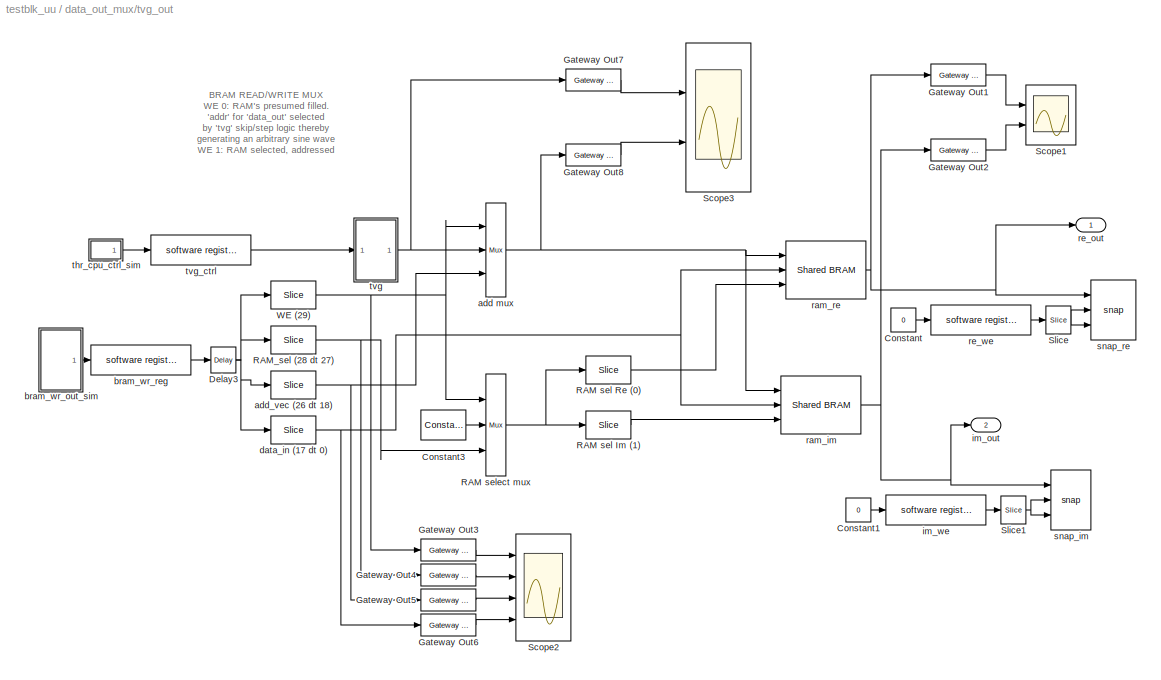
BLOCK [SubSystem] data_out_mux/tvg_out
  MinAlgLoopOccurrences = off
  Ports = [0, 2]
  RTWSystemCode = Auto
  TreatAsAtomicUnit = off
BLOCK [Constant] data_out_mux/tvg_out/Constant
  Value = 0
BLOCK [Constant] data_out_mux/tvg_out/Constant1
  Value = 0
BLOCK [Reference] data_out_mux/tvg_out/Constant3  REF=xbsIndex_r3/Constant
  Ports = [0, 1]
  SourceBlock = xbsIndex_r3/Constant
  SourceType = Xilinx Constant Block
  arith_type = Unsigned
  bin_pt = 0
  carry = CIN
  const = 0
  dbl_ovrd = off
  equ = P=C
  explicit_period = on
  inp1 = P
  inp2 = PCIN>>17
  iostate = 0
  n_bits = 4
  opr = +
  opselect = C
  period = 1
BLOCK [Reference] data_out_mux/tvg_out/Delay3  REF=xbsIndex_r3/Delay
  Ports = [1, 1]
  SourceBlock = xbsIndex_r3/Delay
  SourceType = Xilinx Delay Block
  accept_only_valid = off
  dbl_ovrd = off
  en = off
  explicit_period = on
  init_zero = on
  latency = 1
  period = 1
  reg_retiming = on
  show_param = off
  xl_area = [0, 0, 0, 0, 0, 0, 0]
  xl_use_area = off
BLOCK [Reference] data_out_mux/tvg_out/Gateway Out1  REF=xbsIndex_r3/Gateway Out
  LOCs = {}
  Ports = [1, 1]
  SourceBlock = xbsIndex_r3/Gateway Out
  SourceType = Xilinx Gateway Out
  arith_type = Boolean
  bin_pt = 6
  hdl_port = on
  locs_specified = off
  nbits = 8
  needs_fixed_name = off
  output_type = Double
  overflow = Wrap
  quantization = Truncate
  show_param = off
  timing_constraint = None
  xl_area = [0, 0, 0, 0, 0, 0, 0]
  xl_use_area = off
BLOCK [Reference] data_out_mux/tvg_out/Gateway Out2  REF=xbsIndex_r3/Gateway Out
  LOCs = {}
  Ports = [1, 1]
  SourceBlock = xbsIndex_r3/Gateway Out
  SourceType = Xilinx Gateway Out
  arith_type = Boolean
  bin_pt = 6
  hdl_port = on
  locs_specified = off
  nbits = 8
  needs_fixed_name = off
  output_type = Double
  overflow = Wrap
  quantization = Truncate
  show_param = off
  timing_constraint = None
  xl_area = [0, 0, 0, 0, 0, 0, 0]
  xl_use_area = off
BLOCK [Reference] data_out_mux/tvg_out/Gateway Out3  REF=xbsIndex_r3/Gateway Out
  LOCs = {}
  Ports = [1, 1]
  SourceBlock = xbsIndex_r3/Gateway Out
  SourceType = Xilinx Gateway Out
  arith_type = Boolean
  bin_pt = 6
  hdl_port = on
  locs_specified = off
  nbits = 8
  needs_fixed_name = off
  output_type = Double
  overflow = Wrap
  quantization = Truncate
  show_param = off
  timing_constraint = None
  xl_area = [0, 0, 0, 0, 0, 0, 0]
  xl_use_area = off
BLOCK [Reference] data_out_mux/tvg_out/Gateway Out4  REF=xbsIndex_r3/Gateway Out
  LOCs = {}
  Ports = [1, 1]
  SourceBlock = xbsIndex_r3/Gateway Out
  SourceType = Xilinx Gateway Out
  arith_type = Boolean
  bin_pt = 6
  hdl_port = on
  locs_specified = off
  nbits = 8
  needs_fixed_name = off
  output_type = Double
  overflow = Wrap
  quantization = Truncate
  show_param = off
  timing_constraint = None
  xl_area = [0, 0, 0, 0, 0, 0, 0]
  xl_use_area = off
BLOCK [Reference] data_out_mux/tvg_out/Gateway Out5  REF=xbsIndex_r3/Gateway Out
  LOCs = {}
  Ports = [1, 1]
  SourceBlock = xbsIndex_r3/Gateway Out
  SourceType = Xilinx Gateway Out
  arith_type = Boolean
  bin_pt = 6
  hdl_port = on
  locs_specified = off
  nbits = 8
  needs_fixed_name = off
  output_type = Double
  overflow = Wrap
  quantization = Truncate
  show_param = off
  timing_constraint = None
  xl_area = [0, 0, 0, 0, 0, 0, 0]
  xl_use_area = off
BLOCK [Reference] data_out_mux/tvg_out/Gateway Out6  REF=xbsIndex_r3/Gateway Out
  LOCs = {}
  Ports = [1, 1]
  SourceBlock = xbsIndex_r3/Gateway Out
  SourceType = Xilinx Gateway Out
  arith_type = Boolean
  bin_pt = 6
  hdl_port = on
  locs_specified = off
  nbits = 8
  needs_fixed_name = off
  output_type = Double
  overflow = Wrap
  quantization = Truncate
  show_param = off
  timing_constraint = None
  xl_area = [0, 0, 0, 0, 0, 0, 0]
  xl_use_area = off
BLOCK [Reference] data_out_mux/tvg_out/Gateway Out7  REF=xbsIndex_r3/Gateway Out
  LOCs = {}
  Ports = [1, 1]
  SourceBlock = xbsIndex_r3/Gateway Out
  SourceType = Xilinx Gateway Out
  arith_type = Boolean
  bin_pt = 6
  hdl_port = on
  locs_specified = off
  nbits = 8
  needs_fixed_name = off
  output_type = Double
  overflow = Wrap
  quantization = Truncate
  show_param = off
  timing_constraint = None
  xl_area = [0, 0, 0, 0, 0, 0, 0]
  xl_use_area = off
BLOCK [Reference] data_out_mux/tvg_out/Gateway Out8  REF=xbsIndex_r3/Gateway Out
  LOCs = {}
  Ports = [1, 1]
  SourceBlock = xbsIndex_r3/Gateway Out
  SourceType = Xilinx Gateway Out
  arith_type = Boolean
  bin_pt = 6
  hdl_port = on
  locs_specified = off
  nbits = 8
  needs_fixed_name = off
  output_type = Double
  overflow = Wrap
  quantization = Truncate
  show_param = off
  timing_constraint = None
  xl_area = [0, 0, 0, 0, 0, 0, 0]
  xl_use_area = off
BLOCK [Reference] data_out_mux/tvg_out/RAM sel  Re (0)  REF=xbsIndex_r3/Slice
  Ports = [1, 1]
  SourceBlock = xbsIndex_r3/Slice
  SourceType = Xilinx Slice Block
  base0 = LSB of Input
  base1 = MSB of Input
  bit0 = 0
  bit1 = 0
  boolean_output = on
  dbl_ovrd = off
  explicit_period = on
  mode = Lower Bit Location + Width
  nbits = 1
  period = 1
BLOCK [Reference] data_out_mux/tvg_out/RAM sel Im (1)  REF=xbsIndex_r3/Slice
  Ports = [1, 1]
  SourceBlock = xbsIndex_r3/Slice
  SourceType = Xilinx Slice Block
  base0 = LSB of Input
  base1 = MSB of Input
  bit0 = 1
  bit1 = 0
  boolean_output = on
  dbl_ovrd = off
  explicit_period = on
  mode = Lower Bit Location + Width
  nbits = 1
  period = 1
BLOCK [Reference] data_out_mux/tvg_out/RAM select mux  REF=xbsIndex_r3/Mux
  Ports = [3, 1]
  SourceBlock = xbsIndex_r3/Mux
  SourceType = Xilinx Multiplexer Block
  arith_type = Signed  (2's comp)
  bin_pt = 2
  dbl_ovrd = off
  en = off
  explicit_period = on
  gen_core = off
  inputs = 2
  latency = 0
  mux_type = off
  n_bits = 8
  overflow = Wrap
  period = 1
  precision = Full
  quantization = Truncate
  show_param = off
  use_rpm = off
  xl_area = [0, 0, 0, 0, 0, 0, 0]
  xl_use_area = off
BLOCK [Reference] data_out_mux/tvg_out/RAM_sel (28 dt 27)  REF=xbsIndex_r3/Slice
  Ports = [1, 1]
  SourceBlock = xbsIndex_r3/Slice
  SourceType = Xilinx Slice Block
  base0 = LSB of Input
  base1 = MSB of Input
  bit0 = 27
  bit1 = 10
  boolean_output = off
  dbl_ovrd = off
  explicit_period = on
  mode = Lower Bit Location + Width
  nbits = 2
  period = 1
BLOCK [Scope] data_out_mux/tvg_out/Scope1
  DataFormat = StructureWithTime
  NumInputPorts = 2
  Ports = [2]
  SaveName = ScopeData2
  YMax = 5~5
  YMin = -5~-5
  ZoomMode = yonly
BLOCK [Scope] data_out_mux/tvg_out/Scope2
  DataFormat = StructureWithTime
  NumInputPorts = 4
  Ports = [4]
  SaveName = ScopeData1
  YMax = 5~5~5~5
  YMin = -5~-5~-5~-5
  ZoomMode = xonly
BLOCK [Scope] data_out_mux/tvg_out/Scope3
  DataFormat = StructureWithTime
  NumInputPorts = 2
  Ports = [2]
  SaveName = ScopeData3
  YMax = 5~5
  YMin = -5~-5
  ZoomMode = yonly
BLOCK [Reference] data_out_mux/tvg_out/Slice  REF=xbsIndex_r3/Slice
  Ports = [1, 1]
  SourceBlock = xbsIndex_r3/Slice
  SourceType = Xilinx Slice Block
  base0 = LSB of Input
  base1 = MSB of Input
  bit0 = 0
  bit1 = 0
  boolean_output = on
  dbl_ovrd = off
  explicit_period = off
  mode = Lower Bit Location + Width
  nbits = 1
  period = 1
BLOCK [Reference] data_out_mux/tvg_out/Slice1  REF=xbsIndex_r3/Slice
  Ports = [1, 1]
  SourceBlock = xbsIndex_r3/Slice
  SourceType = Xilinx Slice Block
  base0 = LSB of Input
  base1 = MSB of Input
  bit0 = 0
  bit1 = 0
  boolean_output = on
  dbl_ovrd = off
  explicit_period = off
  mode = Lower Bit Location + Width
  nbits = 1
  period = 1
BLOCK [Reference] data_out_mux/tvg_out/WE (29)  REF=xbsIndex_r3/Slice
  Ports = [1, 1]
  SourceBlock = xbsIndex_r3/Slice
  SourceType = Xilinx Slice Block
  base0 = LSB of Input
  base1 = MSB of Input
  bit0 = 29
  bit1 = 10
  boolean_output = off
  dbl_ovrd = off
  explicit_period = on
  mode = Lower Bit Location + Width
  nbits = 1
  period = 1
BLOCK [Reference] data_out_mux/tvg_out/add mux  REF=xbsIndex_r3/Mux
  Ports = [3, 1]
  SourceBlock = xbsIndex_r3/Mux
  SourceType = Xilinx Multiplexer Block
  arith_type = Signed  (2's comp)
  bin_pt = 2
  dbl_ovrd = off
  en = off
  explicit_period = on
  gen_core = off
  inputs = 2
  latency = 0
  mux_type = off
  n_bits = 8
  overflow = Wrap
  period = 1
  precision = Full
  quantization = Truncate
  show_param = off
  use_rpm = off
  xl_area = [0, 0, 0, 0, 0, 0, 0]
  xl_use_area = off
BLOCK [Reference] data_out_mux/tvg_out/add_vec (26 dt 18)  REF=xbsIndex_r3/Slice
  Ports = [1, 1]
  SourceBlock = xbsIndex_r3/Slice
  SourceType = Xilinx Slice Block
  base0 = LSB of Input
  base1 = MSB of Input
  bit0 = 18
  bit1 = 0
  boolean_output = off
  dbl_ovrd = off
  explicit_period = on
  mode = Lower Bit Location + Width
  nbits = 9
  period = 1
BLOCK [SubSystem] data_out_mux/tvg_out/bram_wr_out_sim
  MaskCallbackString = |||
  MaskEnableString = on,on,on,on
  MaskIconFrame = on
  MaskIconOpaque = on
  MaskIconRotate = none
  MaskIconUnits = autoscale
  MaskPromptString = Write enable|RAM selector (1 = Re; 2 = Im; 3 = both)|RAM address|Data in
  MaskStyleString = edit,edit,edit,edit
  MaskTabNameString = ,,,
  MaskToolTipString = on,on,on,on
  MaskTunableValueString = on,on,on,on
  MaskValueString = 0|3|512|32
  MaskVarAliasString = ,,,
  MaskVariables = we_enable=@1;ram_sel=@2;add_vec=@3;data_in=@4;
  MaskVisibilityString = on,on,on,on
  MinAlgLoopOccurrences = off
  Ports = [0, 1]
  RTWSystemCode = Auto
  TreatAsAtomicUnit = off
BLOCK [Reference] data_out_mux/tvg_out/bram_wr_out_sim/Concat  REF=xbsIndex_r3/Concat
  Ports = [5, 1]
  SourceBlock = xbsIndex_r3/Concat
  SourceType = Xilinx Bus Concatenator
  dbl_ovrd = off
  explicit_period = off
  num_inputs = 5
  period = 1
BLOCK [Reference] data_out_mux/tvg_out/bram_wr_out_sim/Gateway Out  REF=xbsIndex_r3/Gateway Out
  LOCs = {}
  Ports = [1, 1]
  SourceBlock = xbsIndex_r3/Gateway Out
  SourceType = Xilinx Gateway Out
  arith_type = Boolean
  bin_pt = 6
  hdl_port = on
  locs_specified = off
  nbits = 8
  needs_fixed_name = off
  output_type = Double
  overflow = Wrap
  quantization = Truncate
  show_param = off
  timing_constraint = None
  xl_area = [0, 0, 0, 0, 0, 0, 0]
  xl_use_area = off
BLOCK [Outport] data_out_mux/tvg_out/bram_wr_out_sim/Out1
  BusOutputAsStruct = off
  IconDisplay = Port number
BLOCK [Reference] data_out_mux/tvg_out/bram_wr_out_sim/RAM_sel  REF=xbsIndex_r3/Constant
  Ports = [0, 1]
  SourceBlock = xbsIndex_r3/Constant
  SourceType = Xilinx Constant Block
  arith_type = Unsigned
  bin_pt = 0
  carry = CIN
  const = ram_sel
  dbl_ovrd = off
  equ = P=C
  explicit_period = on
  inp1 = P
  inp2 = PCIN>>17
  iostate = 0
  n_bits = 2
  opr = +
  opselect = C
  period = 1
BLOCK [Reference] data_out_mux/tvg_out/bram_wr_out_sim/WE  REF=xbsIndex_r3/Constant
  Ports = [0, 1]
  SourceBlock = xbsIndex_r3/Constant
  SourceType = Xilinx Constant Block
  arith_type = Unsigned
  bin_pt = 0
  carry = CIN
  const = we_enable
  dbl_ovrd = off
  equ = P=C
  explicit_period = on
  inp1 = P
  inp2 = PCIN>>17
  iostate = 0
  n_bits = 1
  opr = +
  opselect = C
  period = 1
BLOCK [Reference] data_out_mux/tvg_out/bram_wr_out_sim/add_vec  REF=xbsIndex_r3/Constant
  Ports = [0, 1]
  SourceBlock = xbsIndex_r3/Constant
  SourceType = Xilinx Constant Block
  arith_type = Unsigned
  bin_pt = 0
  carry = CIN
  const = add_vec
  dbl_ovrd = off
  equ = P=C
  explicit_period = on
  inp1 = P
  inp2 = PCIN>>17
  iostate = 0
  n_bits = 9
  opr = +
  opselect = C
  period = 1
BLOCK [Reference] data_out_mux/tvg_out/bram_wr_out_sim/data_in  REF=xbsIndex_r3/Constant
  Ports = [0, 1]
  SourceBlock = xbsIndex_r3/Constant
  SourceType = Xilinx Constant Block
  arith_type = Unsigned
  bin_pt = 0
  carry = CIN
  const = data_in
  dbl_ovrd = off
  equ = P=C
  explicit_period = on
  inp1 = P
  inp2 = PCIN>>17
  iostate = 0
  n_bits = 18
  opr = +
  opselect = C
  period = 1
BLOCK [Reference] data_out_mux/tvg_out/bram_wr_out_sim/zeros  REF=xbsIndex_r3/Constant
  Ports = [0, 1]
  SourceBlock = xbsIndex_r3/Constant
  SourceType = Xilinx Constant Block
  arith_type = Unsigned
  bin_pt = 0
  carry = CIN
  const = 0
  dbl_ovrd = off
  equ = P=C
  explicit_period = on
  inp1 = P
  inp2 = PCIN>>17
  iostate = 0
  n_bits = 2
  opr = +
  opselect = C
  period = 1
BLOCK [Reference] data_out_mux/tvg_out/bram_wr_reg  REF=xps_library/software register  (lib defined in mdl_00b5cec29cd0, mdl_02ab6ecaa3d1, +5 more)
  Ports = [1, 1]
  ShowPortLabels = on
  SourceBlock = xps_library/software register
  Tag = xps:sw_reg
  arith_type = Unsigned
  bin_pt = 0
  bitwidth = 32
  gw_name = testblk_uu_data_out_mux_tvg_out_bram_wr_reg_user_data_out
  io_dir = From Processor
  sample_period = 1
BLOCK [Reference] data_out_mux/tvg_out/data_in (17 dt 0)  REF=xbsIndex_r3/Slice
  Ports = [1, 1]
  SourceBlock = xbsIndex_r3/Slice
  SourceType = Xilinx Slice Block
  base0 = LSB of Input
  base1 = MSB of Input
  bit0 = 0
  bit1 = 0
  boolean_output = off
  dbl_ovrd = off
  explicit_period = on
  mode = Lower Bit Location + Width
  nbits = 18
  period = 1
BLOCK [Outport] data_out_mux/tvg_out/im_out
  BusOutputAsStruct = off
  IconDisplay = Port number
  Port = 2
BLOCK [Reference] data_out_mux/tvg_out/im_we  REF=xps_library/software register  (lib defined in mdl_00b5cec29cd0, mdl_02ab6ecaa3d1, +5 more)
  Ports = [1, 1]
  ShowPortLabels = on
  SourceBlock = xps_library/software register
  Tag = xps:sw_reg
  arith_type = Unsigned
  bin_pt = 0
  bitwidth = 32
  gw_name = testblk_uu_data_out_mux_tvg_out_im_we_user_data_out
  io_dir = From Processor
  sample_period = 1
BLOCK [Reference] data_out_mux/tvg_out/ram_im  REF=xps_library/Shared BRAM  (lib defined in mdl_00b5cec29cd0, mdl_02ab6ecaa3d1, +5 more)
  Ports = [3, 1]
  ShowPortLabels = on
  SourceBlock = xps_library/Shared BRAM
  Tag = xps:bram
  addr_width = 11
  arith_type = Signed  (2's comp)
  data_bin_pt = 0
  data_width = 32
  init_vals = [1:2^11]
  sample_rate = 1
BLOCK [Reference] data_out_mux/tvg_out/ram_re  REF=xps_library/Shared BRAM  (lib defined in mdl_00b5cec29cd0, mdl_02ab6ecaa3d1, +5 more)
  Ports = [3, 1]
  ShowPortLabels = on
  SourceBlock = xps_library/Shared BRAM
  Tag = xps:bram
  addr_width = 11
  arith_type = Signed  (2's comp)
  data_bin_pt = 0
  data_width = 32
  init_vals = [1:2^11]
  sample_rate = 1
BLOCK [Outport] data_out_mux/tvg_out/re_out
  BusOutputAsStruct = off
  IconDisplay = Port number
BLOCK [Reference] data_out_mux/tvg_out/re_we  REF=xps_library/software register  (lib defined in mdl_00b5cec29cd0, mdl_02ab6ecaa3d1, +5 more)
  Ports = [1, 1]
  ShowPortLabels = on
  SourceBlock = xps_library/software register
  Tag = xps:sw_reg
  arith_type = Unsigned
  bin_pt = 0
  bitwidth = 32
  gw_name = testblk_uu_data_out_mux_tvg_out_re_we_user_data_out
  io_dir = From Processor
  sample_period = 1
BLOCK [Reference] data_out_mux/tvg_out/snap_im  REF=casper_library/Scopes/snap  (lib defined in mdl_138b2fc3435f, mdl_4ed325b712b3, +2 more)
  Ports = [3]
  ShowPortLabels = on
  SourceBlock = casper_library/Scopes/snap
  SourceType = snap
  nsamples = 11
BLOCK [Reference] data_out_mux/tvg_out/snap_re  REF=casper_library/Scopes/snap  (lib defined in mdl_138b2fc3435f, mdl_4ed325b712b3, +2 more)
  Ports = [3]
  ShowPortLabels = on
  SourceBlock = casper_library/Scopes/snap
  SourceType = snap
  nsamples = 11
BLOCK [SubSystem] data_out_mux/tvg_out/thr_cpu_ctrl_sim
  MaskCallbackString = ||
  MaskDescription = Mux Data for CT and FFT Syncs:\n\n0 -> Interchip Connection\n1 -> User Generated External Sync\n2 -> Periodic Sync Generator\n3 -> Periodic Sync Generator (Same as 2)\n\nMux Data for CT and FFT Inputs:\n\n0 -> Interchip Connection\n1 -> Test Vector Generator (TVG)\n2 -> All Zeroes (0's)\n3 -> All Ones (1's)
  MaskEnableString = on,on,on
  MaskIconFrame = on
  MaskIconOpaque = on
  MaskIconRotate = none
  MaskIconUnits = autoscale
  MaskPromptString = Skip|Stall|Length
  MaskStyleString = edit,edit,edit
  MaskTabNameString = ,,
  MaskToolTipString = on,on,on
  MaskTunableValueString = on,on,on
  MaskValueString = 1|2|5
  MaskVarAliasString = ,,
  MaskVariables = tvg_skip=@1;tvg_stall=@2;tvg_length=@3;
  MaskVisibilityString = on,on,on
  MinAlgLoopOccurrences = off
  Ports = [0, 1]
  RTWSystemCode = Auto
  TreatAsAtomicUnit = off
BLOCK [Reference] data_out_mux/tvg_out/thr_cpu_ctrl_sim/Concat  REF=xbsIndex_r3/Concat
  Ports = [4, 1]
  SourceBlock = xbsIndex_r3/Concat
  SourceType = Xilinx Bus Concatenator
  dbl_ovrd = off
  explicit_period = off
  num_inputs = 4
  period = 1
BLOCK [Reference] data_out_mux/tvg_out/thr_cpu_ctrl_sim/Delay  REF=xbsIndex_r3/Delay
  Ports = [1, 1]
  SourceBlock = xbsIndex_r3/Delay
  SourceType = Xilinx Delay Block
  accept_only_valid = off
  dbl_ovrd = off
  en = off
  explicit_period = off
  init_zero = on
  latency = 1
  period = 1
  reg_retiming = off
  show_param = off
  xl_area = [0, 0, 0, 0, 0, 0, 0]
  xl_use_area = off
BLOCK [Reference] data_out_mux/tvg_out/thr_cpu_ctrl_sim/Disregard Subsystem  REF=xbsIndex_r3/Disregard Subsystem
  AttributesFormatString = Disregard Subsystem\\nFor Generation
  Ports = []
  ShowPortLabels = on
  SourceBlock = xbsIndex_r3/Disregard Subsystem
  SourceType = Xilinx Disregard Subsystem For Generation
  Tag = discardX
BLOCK [Reference] data_out_mux/tvg_out/thr_cpu_ctrl_sim/Gateway Out  REF=xbsIndex_r3/Gateway Out
  LOCs = {}
  Ports = [1, 1]
  SourceBlock = xbsIndex_r3/Gateway Out
  SourceType = Xilinx Gateway Out
  arith_type = Boolean
  bin_pt = 6
  hdl_port = off
  locs_specified = off
  nbits = 8
  needs_fixed_name = off
  output_type = Double
  overflow = Wrap
  quantization = Truncate
  show_param = off
  timing_constraint = None
  xl_area = [0, 0, 0, 0, 0, 0, 0]
  xl_use_area = off
BLOCK [Reference] data_out_mux/tvg_out/thr_cpu_ctrl_sim/Length  REF=xbsIndex_r3/Constant
  Ports = [0, 1]
  SourceBlock = xbsIndex_r3/Constant
  SourceType = Xilinx Constant Block
  arith_type = Unsigned
  bin_pt = 0
  carry = CIN
  const = tvg_length
  dbl_ovrd = off
  equ = P=C
  explicit_period = on
  inp1 = P
  inp2 = PCIN>>17
  iostate = 0
  n_bits = 10
  opr = +
  opselect = C
  period = 1
BLOCK [Reference] data_out_mux/tvg_out/thr_cpu_ctrl_sim/Skip	  REF=xbsIndex_r3/Constant
  Ports = [0, 1]
  SourceBlock = xbsIndex_r3/Constant
  SourceType = Xilinx Constant Block
  arith_type = Unsigned
  bin_pt = 0
  carry = CIN
  const = tvg_skip
  dbl_ovrd = off
  equ = P=C
  explicit_period = on
  inp1 = P
  inp2 = PCIN>>17
  iostate = 0
  n_bits = 10
  opr = +
  opselect = C
  period = 1
BLOCK [Reference] data_out_mux/tvg_out/thr_cpu_ctrl_sim/Stall  REF=xbsIndex_r3/Constant
  Ports = [0, 1]
  SourceBlock = xbsIndex_r3/Constant
  SourceType = Xilinx Constant Block
  arith_type = Unsigned
  bin_pt = 0
  carry = CIN
  const = tvg_stall
  dbl_ovrd = off
  equ = P=C
  explicit_period = on
  inp1 = P
  inp2 = PCIN>>17
  iostate = 0
  n_bits = 10
  opr = +
  opselect = C
  period = 1
BLOCK [Outport] data_out_mux/tvg_out/thr_cpu_ctrl_sim/out
  BusOutputAsStruct = off
  IconDisplay = Port number
BLOCK [Reference] data_out_mux/tvg_out/thr_cpu_ctrl_sim/pad_zeroes  REF=xbsIndex_r3/Constant
  Ports = [0, 1]
  SourceBlock = xbsIndex_r3/Constant
  SourceType = Xilinx Constant Block
  arith_type = Unsigned
  bin_pt = 0
  carry = CIN
  const = 0
  dbl_ovrd = off
  equ = P=C
  explicit_period = on
  inp1 = P
  inp2 = PCIN>>17
  iostate = 0
  n_bits = 2
  opr = +
  opselect = C
  period = 1
BLOCK [SubSystem] data_out_mux/tvg_out/tvg
  MaskCallbackString = ||
  MaskEnableString = on,on,on
  MaskIconFrame = on
  MaskIconOpaque = on
  MaskIconRotate = none
  MaskIconUnits = autoscale
  MaskPromptString = Skip|Stall|Length
  MaskStyleString = edit,edit,edit
  MaskTabNameString = ,,
  MaskToolTipString = on,on,on
  MaskTunableValueString = on,on,on
  MaskType = Test Vector Generator(TVG)
  MaskValueString = 1|1|512
  MaskVarAliasString = ,,
  MaskVariables = tvg_skip=@1;tvg_stall=@2;tvg_length=@3;
  MaskVisibilityString = on,on,on
  MinAlgLoopOccurrences = off
  Ports = [1, 1]
  RTWSystemCode = Auto
  TreatAsAtomicUnit = off
BLOCK [Reference] data_out_mux/tvg_out/tvg/Accumulator  REF=xbsIndex_r3/Accumulator
  Ports = [3, 1]
  SourceBlock = xbsIndex_r3/Accumulator
  SourceType = Xilinx Accumulator
  dbl_ovrd = off
  en = on
  explicit_period = on
  gen_core = off
  hasbypass = off
  n_bits = 10
  operation = Add
  overflow = Wrap
  period = 1
  rst = on
  scale = 1
  show_param = off
  use_rpm = on
  xl_area = [0, 0, 0, 0, 0, 0, 0]
  xl_use_area = off
BLOCK [Reference] data_out_mux/tvg_out/tvg/AddSub  REF=xbsIndex_r3/AddSub
  Ports = [2, 1]
  SourceBlock = xbsIndex_r3/AddSub
  SourceType = Xilinx Adder/Subtractor
  arith_type = Unsigned
  bin_pt = 2
  dbl_ovrd = off
  en = off
  explicit_period = on
  gen_core = off
  latency = 1
  mode = Subtraction
  n_bits = 8
  overflow = Wrap
  period = 1
  pipeline = off
  precision = Full
  quantization = Truncate
  show_param = off
  use_carryin = off
  use_carryout = off
  use_core = on
  use_rpm = on
  xl_area = [0, 0, 0, 0, 0, 0, 0]
  xl_use_area = off
BLOCK [Reference] data_out_mux/tvg_out/tvg/Constant1  REF=xbsIndex_r3/Constant
  Ports = [0, 1]
  SourceBlock = xbsIndex_r3/Constant
  SourceType = Xilinx Constant Block
  arith_type = Unsigned
  bin_pt = 0
  carry = CIN
  const = 1
  dbl_ovrd = off
  equ = P=C
  explicit_period = on
  inp1 = P
  inp2 = PCIN>>17
  iostate = 0
  n_bits = 10
  opr = +
  opselect = C
  period = 1
BLOCK [Reference] data_out_mux/tvg_out/tvg/Counter  REF=xbsIndex_r3/Counter
  Ports = [2, 1]
  SourceBlock = xbsIndex_r3/Counter
  SourceType = Xilinx Counter Block
  arith_type = Unsigned
  bin_pt = 0
  cnt_by_val = 1
  cnt_to = inf
  cnt_type = Free Running
  dbl_ovrd = off
  en = off
  explicit_period = on
  gen_core = off
  load_pin = on
  n_bits = 10
  operation = Up
  period = 1
  rst = off
  show_param = off
  start_count = 0
  use_rpm = on
  xl_area = [0, 0, 0, 0, 0, 0, 0]
  xl_use_area = off
BLOCK [Reference] data_out_mux/tvg_out/tvg/Gateway Out1  REF=xbsIndex_r3/Gateway Out
  LOCs = {}
  Ports = [1, 1]
  SourceBlock = xbsIndex_r3/Gateway Out
  SourceType = Xilinx Gateway Out
  arith_type = Boolean
  bin_pt = 6
  hdl_port = on
  locs_specified = off
  nbits = 8
  needs_fixed_name = off
  output_type = Double
  overflow = Wrap
  quantization = Truncate
  show_param = off
  timing_constraint = None
  xl_area = [0, 0, 0, 0, 0, 0, 0]
  xl_use_area = off
BLOCK [Reference] data_out_mux/tvg_out/tvg/Gateway Out2  REF=xbsIndex_r3/Gateway Out
  LOCs = {}
  Ports = [1, 1]
  SourceBlock = xbsIndex_r3/Gateway Out
  SourceType = Xilinx Gateway Out
  arith_type = Boolean
  bin_pt = 6
  hdl_port = on
  locs_specified = off
  nbits = 8
  needs_fixed_name = off
  output_type = Double
  overflow = Wrap
  quantization = Truncate
  show_param = off
  timing_constraint = None
  xl_area = [0, 0, 0, 0, 0, 0, 0]
  xl_use_area = off
BLOCK [Reference] data_out_mux/tvg_out/tvg/Gateway Out3  REF=xbsIndex_r3/Gateway Out
  LOCs = {}
  Ports = [1, 1]
  SourceBlock = xbsIndex_r3/Gateway Out
  SourceType = Xilinx Gateway Out
  arith_type = Boolean
  bin_pt = 6
  hdl_port = on
  locs_specified = off
  nbits = 8
  needs_fixed_name = off
  output_type = Double
  overflow = Wrap
  quantization = Truncate
  show_param = off
  timing_constraint = None
  xl_area = [0, 0, 0, 0, 0, 0, 0]
  xl_use_area = off
BLOCK [Reference] data_out_mux/tvg_out/tvg/Gateway Out4  REF=xbsIndex_r3/Gateway Out
  LOCs = {}
  Ports = [1, 1]
  SourceBlock = xbsIndex_r3/Gateway Out
  SourceType = Xilinx Gateway Out
  arith_type = Boolean
  bin_pt = 6
  hdl_port = on
  locs_specified = off
  nbits = 8
  needs_fixed_name = off
  output_type = Double
  overflow = Wrap
  quantization = Truncate
  show_param = off
  timing_constraint = None
  xl_area = [0, 0, 0, 0, 0, 0, 0]
  xl_use_area = off
BLOCK [Inport] data_out_mux/tvg_out/tvg/In1
  IconDisplay = Port number
  LatchInput = off
  Port = 1
BLOCK [Reference] data_out_mux/tvg_out/tvg/Logical  REF=xbsIndex_r3/Logical
  Ports = [2, 1]
  SourceBlock = xbsIndex_r3/Logical
  SourceType = Xilinx Logical Block
  align_bp = on
  arith_type = Unsigned
  bin_pt = 2
  dbl_ovrd = off
  en = off
  explicit_period = off
  inputs = 2
  latency = 0
  logical_function = AND
  n_bits = 8
  period = 1
  precision = Full
  show_param = off
  xl_area = [0, 0, 0, 0, 0, 0, 0]
  xl_use_area = off
BLOCK [Outport] data_out_mux/tvg_out/tvg/Out1
  BusOutputAsStruct = off
  IconDisplay = Port number
BLOCK [Reference] data_out_mux/tvg_out/tvg/Relational2  REF=xbsIndex_r3/Relational
  Ports = [2, 1]
  SourceBlock = xbsIndex_r3/Relational
  SourceType = Xilinx Relational Block
  dbl_ovrd = off
  en = off
  explicit_period = on
  latency = 0
  mode = a>=b
  period = 1
  show_param = off
  xl_area = [0, 0, 0, 0, 0, 0, 0]
  xl_use_area = off
BLOCK [Reference] data_out_mux/tvg_out/tvg/Relational3  REF=xbsIndex_r3/Relational
  Ports = [2, 1]
  SourceBlock = xbsIndex_r3/Relational
  SourceType = Xilinx Relational Block
  dbl_ovrd = off
  en = off
  explicit_period = on
  latency = 0
  mode = a>=b
  period = 1
  show_param = off
  xl_area = [0, 0, 0, 0, 0, 0, 0]
  xl_use_area = off
BLOCK [Scope] data_out_mux/tvg_out/tvg/Scope1
  DataFormat = StructureWithTime
  NumInputPorts = 2
  Ports = [2]
  YMax = 5~5
  YMin = -5~-5
  ZoomMode = xonly
BLOCK [Scope] data_out_mux/tvg_out/tvg/Scope3
  DataFormat = StructureWithTime
  NumInputPorts = 2
  Ports = [2]
  SaveName = ScopeData4
  TimeRange = 20
  YMax = 5~5
  YMin = -5~-5
BLOCK [Reference] data_out_mux/tvg_out/tvg/length  REF=xbsIndex_r3/Slice
  Ports = [1, 1]
  SourceBlock = xbsIndex_r3/Slice
  SourceType = Xilinx Slice Block
  base0 = LSB of Input
  base1 = MSB of Input
  bit0 = 20
  bit1 = 0
  boolean_output = off
  dbl_ovrd = off
  explicit_period = on
  mode = Lower Bit Location + Width
  nbits = 10
  period = 1
BLOCK [Reference] data_out_mux/tvg_out/tvg/skip  REF=xbsIndex_r3/Slice
  Ports = [1, 1]
  SourceBlock = xbsIndex_r3/Slice
  SourceType = Xilinx Slice Block
  base0 = LSB of Input
  base1 = MSB of Input
  bit0 = 0
  bit1 = 0
  boolean_output = off
  dbl_ovrd = off
  explicit_period = on
  mode = Lower Bit Location + Width
  nbits = 10
  period = 1
BLOCK [Reference] data_out_mux/tvg_out/tvg/stall  REF=xbsIndex_r3/Slice
  Ports = [1, 1]
  SourceBlock = xbsIndex_r3/Slice
  SourceType = Xilinx Slice Block
  base0 = LSB of Input
  base1 = MSB of Input
  bit0 = 10
  bit1 = 0
  boolean_output = off
  dbl_ovrd = off
  explicit_period = on
  mode = Lower Bit Location + Width
  nbits = 10
  period = 1
BLOCK [Reference] data_out_mux/tvg_out/tvg_ctrl  REF=xps_library/software register  (lib defined in mdl_00b5cec29cd0, mdl_02ab6ecaa3d1, +5 more)
  Ports = [1, 1]
  ShowPortLabels = on
  SourceBlock = xps_library/software register
  Tag = xps:sw_reg
  arith_type = Unsigned
  bin_pt = 0
  bitwidth = 32
  gw_name = testblk_uu_data_out_mux_tvg_out_tvg_ctrl_user_data_out
  io_dir = From Processor
  sample_period = 1
BLOCK [Reference] dummy_data_block  REF=xbsIndex_r3/Delay
  Ports = [1, 1]
  SourceBlock = xbsIndex_r3/Delay
  SourceType = Xilinx Delay Block
  accept_only_valid = off
  dbl_ovrd = off
  en = off
  explicit_period = on
  init_zero = on
  latency = 4096
  period = 1
  reg_retiming = off
  show_param = off
  xl_area = [0, 0, 0, 0, 0, 0, 0]
  xl_use_area = off
BLOCK [Reference] dummy_sync_block  REF=xbsIndex_r3/Delay
  Ports = [1, 1]
  SourceBlock = xbsIndex_r3/Delay
  SourceType = Xilinx Delay Block
  accept_only_valid = off
  dbl_ovrd = off
  en = off
  explicit_period = on
  init_zero = on
  latency = 4096
  period = 1
  reg_retiming = off
  show_param = off
  xl_area = [0, 0, 0, 0, 0, 0, 0]
  xl_use_area = off
BLOCK [Reference] snap64  REF=casper_library/Scopes/snap64  (lib defined in mdl_138b2fc3435f, mdl_4ed325b712b3, +2 more)
  Ports = [3]
  ShowPortLabels = on
  SourceBlock = casper_library/Scopes/snap64
  SourceType = snap64
  nsamples = 11
BLOCK [Reference] snap_out_we  REF=xps_library/software register  (lib defined in mdl_00b5cec29cd0, mdl_02ab6ecaa3d1, +5 more)
  Ports = [1, 1]
  ShowPortLabels = on
  SourceBlock = xps_library/software register
  Tag = xps:sw_reg
  arith_type = Unsigned
  bin_pt = 0
  bitwidth = 32
  gw_name = testblk_uu_snap_out_we_user_data_out
  io_dir = From Processor
  sample_period = 1
BLOCK [SubSystem] sync_in_mux
  MaskCallbackString = |
  MaskEnableString = on,on
  MaskIconFrame = on
  MaskIconOpaque = on
  MaskIconRotate = none
  MaskIconUnits = autoscale
  MaskPromptString = Sync Mux (0 = from previous FPGA, 1 = simulated sync)|Simulated sync period(number of clock cycles)
  MaskStyleString = edit,edit
  MaskTabNameString = ,
  MaskToolTipString = on,on
  MaskTunableValueString = on,on
  MaskValueString = 1|(2^3)-2
  MaskVarAliasString = ,
  MaskVariables = sync_sel=@1;sync_period=@2;
  MaskVisibilityString = on,on
  MinAlgLoopOccurrences = off
  Ports = [0, 1]
  RTWSystemCode = Auto
  TreatAsAtomicUnit = off
BLOCK [Constant] sync_in_mux/Constant
  Value = sync_sel
BLOCK [Constant] sync_in_mux/Constant1
BLOCK [Constant] sync_in_mux/Constant2
  Value = sync_period
BLOCK [Reference] sync_in_mux/Counter  REF=xbsIndex_r3/Counter
  Ports = [1, 1]
  SourceBlock = xbsIndex_r3/Counter
  SourceType = Xilinx Counter Block
  arith_type = Unsigned
  bin_pt = 0
  cnt_by_val = 1
  cnt_to = Inf
  cnt_type = Free Running
  dbl_ovrd = off
  en = off
  explicit_period = on
  gen_core = off
  load_pin = off
  n_bits = 32
  operation = Up
  period = 1
  rst = on
  show_param = off
  start_count = 0
  use_rpm = on
  xl_area = [0, 0, 0, 0, 0, 0, 0]
  xl_use_area = off
BLOCK [Outport] sync_in_mux/Out1
  BusOutputAsStruct = off
  IconDisplay = Port number
BLOCK [Reference] sync_in_mux/Relational  REF=xbsIndex_r3/Relational
  Ports = [2, 1]
  SourceBlock = xbsIndex_r3/Relational
  SourceType = Xilinx Relational Block
  dbl_ovrd = off
  en = off
  explicit_period = off
  latency = 0
  mode = a=b
  period = 1
  show_param = off
  xl_area = [0, 0, 0, 0, 0, 0, 0]
  xl_use_area = off
BLOCK [Reference] sync_in_mux/Slice  REF=xbsIndex_r3/Slice
  Ports = [1, 1]
  SourceBlock = xbsIndex_r3/Slice
  SourceType = Xilinx Slice Block
  base0 = LSB of Input
  base1 = MSB of Input
  bit0 = 0
  bit1 = 0
  boolean_output = off
  dbl_ovrd = off
  explicit_period = off
  mode = Lower Bit Location + Width
  nbits = 1
  period = 1
BLOCK [Reference] sync_in_mux/gpio  REF=xps_library/gpio  (lib defined in mdl_00b5cec29cd0, mdl_02ab6ecaa3d1, +5 more)
  Ports = [1, 1]
  ShowPortLabels = on
  SourceBlock = xps_library/gpio
  SourceType = gpio
  Tag = xps:gpio
  arith_type = Boolean
  bin_pt = 0
  bit_index = 36
  bitwidth = 1
  io_dir = in
  io_group = BEE2_usr:rightlink
  reg_clk_phase = 0
  reg_iob = on
  sample_period = 1
  termination = None
  use_ddr = off
  use_single_ended = off
BLOCK [Reference] sync_in_mux/sync_mux  REF=xbsIndex_r3/Mux
  Ports = [3, 1]
  SourceBlock = xbsIndex_r3/Mux
  SourceType = Xilinx Multiplexer Block
  arith_type = Signed  (2's comp)
  bin_pt = 2
  dbl_ovrd = off
  en = off
  explicit_period = off
  gen_core = off
  inputs = 2
  latency = 0
  mux_type = off
  n_bits = 8
  overflow = Wrap
  period = 1
  precision = Full
  quantization = Truncate
  show_param = off
  use_rpm = off
  xl_area = [0, 0, 0, 0, 0, 0, 0]
  xl_use_area = off
BLOCK [Reference] sync_in_mux/sync_period  REF=xps_library/software register  (lib defined in mdl_00b5cec29cd0, mdl_02ab6ecaa3d1, +5 more)
  Ports = [1, 1]
  ShowPortLabels = on
  SourceBlock = xps_library/software register
  Tag = xps:sw_reg
  arith_type = Unsigned
  bin_pt = 0
  bitwidth = 32
  gw_name = testblk_uu_sync_in_mux_sync_period_user_data_out
  io_dir = From Processor
  sample_period = 1
BLOCK [Reference] sync_in_mux/sync_sel  REF=xps_library/software register  (lib defined in mdl_00b5cec29cd0, mdl_02ab6ecaa3d1, +5 more)
  Ports = [1, 1]
  ShowPortLabels = on
  SourceBlock = xps_library/software register
  Tag = xps:sw_reg
  arith_type = Unsigned
  bin_pt = 0
  bitwidth = 32
  gw_name = testblk_uu_sync_in_mux_sync_sel_user_data_out
  io_dir = From Processor
  sample_period = 1
BLOCK [Reference] sync_out  REF=xps_library/gpio  (lib defined in mdl_00b5cec29cd0, mdl_02ab6ecaa3d1, +5 more)
  Ports = [1, 1]
  ShowPortLabels = on
  SourceBlock = xps_library/gpio
  SourceType = gpio
  Tag = xps:gpio
  arith_type = Boolean
  bin_pt = 0
  bit_index = 36
  bitwidth = 1
  io_dir = out
  io_group = BEE2_usr:leftlink
  reg_clk_phase = 0
  reg_iob = on
  sample_period = 1
  termination = None
  use_ddr = off
  use_single_ended = off
BLOCK [SubSystem] sync_out_mux
  MaskCallbackString = |
  MaskEnableString = on,on
  MaskIconFrame = on
  MaskIconOpaque = on
  MaskIconRotate = none
  MaskIconUnits = autoscale
  MaskPromptString = Output sync Mux (0 = from block, 1 = simulate)|Sync period (number of clock cycles)
  MaskStyleString = edit,edit
  MaskTabNameString = ,
  MaskToolTipString = on,on
  MaskTunableValueString = on,on
  MaskValueString = 0|0
  MaskVarAliasString = ,
  MaskVariables = sync_sel_out=@1;sync_out_period=@2;
  MaskVisibilityString = on,on
  MinAlgLoopOccurrences = off
  Ports = [1, 1]
  RTWSystemCode = Auto
  TreatAsAtomicUnit = off
BLOCK [Constant] sync_out_mux/Constant
  Value = sync_sel_out
BLOCK [Constant] sync_out_mux/Constant2
  Value = sync_out_period
BLOCK [Reference] sync_out_mux/Counter  REF=xbsIndex_r3/Counter
  Ports = [1, 1]
  SourceBlock = xbsIndex_r3/Counter
  SourceType = Xilinx Counter Block
  arith_type = Unsigned
  bin_pt = 0
  cnt_by_val = 1
  cnt_to = Inf
  cnt_type = Free Running
  dbl_ovrd = off
  en = off
  explicit_period = on
  gen_core = off
  load_pin = off
  n_bits = 32
  operation = Up
  period = 1
  rst = on
  show_param = off
  start_count = 0
  use_rpm = on
  xl_area = [0, 0, 0, 0, 0, 0, 0]
  xl_use_area = off
BLOCK [Inport] sync_out_mux/In1
  IconDisplay = Port number
  LatchInput = off
  Port = 1
BLOCK [Outport] sync_out_mux/Out1
  BusOutputAsStruct = off
  IconDisplay = Port number
BLOCK [Reference] sync_out_mux/Relational  REF=xbsIndex_r3/Relational
  Ports = [2, 1]
  SourceBlock = xbsIndex_r3/Relational
  SourceType = Xilinx Relational Block
  dbl_ovrd = off
  en = off
  explicit_period = on
  latency = 0
  mode = a=b
  period = 1
  show_param = off
  xl_area = [0, 0, 0, 0, 0, 0, 0]
  xl_use_area = off
BLOCK [Reference] sync_out_mux/Slice  REF=xbsIndex_r3/Slice
  Ports = [1, 1]
  SourceBlock = xbsIndex_r3/Slice
  SourceType = Xilinx Slice Block
  base0 = LSB of Input
  base1 = MSB of Input
  bit0 = 0
  bit1 = 0
  boolean_output = off
  dbl_ovrd = off
  explicit_period = off
  mode = Lower Bit Location + Width
  nbits = 1
  period = 1
BLOCK [Reference] sync_out_mux/sync_mux  REF=xbsIndex_r3/Mux
  Ports = [3, 1]
  SourceBlock = xbsIndex_r3/Mux
  SourceType = Xilinx Multiplexer Block
  arith_type = Signed  (2's comp)
  bin_pt = 2
  dbl_ovrd = off
  en = off
  explicit_period = off
  gen_core = off
  inputs = 2
  latency = 0
  mux_type = off
  n_bits = 8
  overflow = Wrap
  period = 1
  precision = Full
  quantization = Truncate
  show_param = off
  use_rpm = off
  xl_area = [0, 0, 0, 0, 0, 0, 0]
  xl_use_area = off
BLOCK [Reference] sync_out_mux/sync_period  REF=xps_library/software register  (lib defined in mdl_00b5cec29cd0, mdl_02ab6ecaa3d1, +5 more)
  Ports = [1, 1]
  ShowPortLabels = on
  SourceBlock = xps_library/software register
  Tag = xps:sw_reg
  arith_type = Unsigned
  bin_pt = 0
  bitwidth = 32
  gw_name = testblk_uu_sync_out_mux_sync_period_user_data_out
  io_dir = From Processor
  sample_period = 1
BLOCK [Reference] sync_out_mux/sync_sel  REF=xps_library/software register  (lib defined in mdl_00b5cec29cd0, mdl_02ab6ecaa3d1, +5 more)
  Ports = [1, 1]
  ShowPortLabels = on
  SourceBlock = xps_library/software register
  Tag = xps:sw_reg
  arith_type = Unsigned
  bin_pt = 0
  bitwidth = 32
  gw_name = testblk_uu_sync_out_mux_sync_sel_user_data_out
  io_dir = From Processor
  sample_period = 1
ANNOTATION (root): 'data_in_mux' selects\nthe data (from gpio, tvg, etc)\nto be propagated\nthrough the fpga
ANNOTATION (root): 'data_out_mux' selects\nthe data (from gpio, tvg, etc)\nto be sent to next fpga
ANNOTATION (root): 'sync_in_mux' either\nprogagates 'sync' from 'gpio'\nor generates a sync pulse
ANNOTATION (root): 'sync_out_mux' either\nsends sync to next chip\nor generates a sync pulse
ANNOTATION (root): Designer: lspitler\nLast modified: 27. Aug 2008\nFramework for testing user_FPGA to user_FPGA interconnects.\nInput/output MUX's select data from previous FPGA or TVG.\nClock changed to 200 MHz (usr_2xclk)
ANNOTATION (root): MSB = Re\nLSB = Im
ANNOTATION data_in_mux/tvg_in: BRAM READ/WRITE MUX\nWE 0: RAM's presumed filled. \n'addr' for 'data_out' selected \nby 'tvg' skip/step logic thereby\ngenerating an arbitrary sine wave\nWE 1: RAM selected, addressed \nand filled through \n'bram_wr_reg'
ANNOTATION data_in_mux/tvg_in/tvg: BRAM address out
ANNOTATION data_in_mux/tvg_in/tvg: Check if address is the\nsecond to last to be written.\nIf so, send reset signal.
ANNOTATION data_in_mux/tvg_in/tvg: Modifed to work at 200 MHz\nby lspitler on 27. Aug 08
ANNOTATION data_in_mux/tvg_in/tvg: When 'Counter' >= 'stall'\nenable a new accumulation\nand reset counter.
ANNOTATION data_in_mux/tvg_in/tvg: skip = number of addresses to skip\nstall = number of clock cycles to spend\non each address\nlength = number of addresses in BRAM\nto read
ANNOTATION data_out_mux/tvg_out: BRAM READ/WRITE MUX\nWE 0: RAM's presumed filled. \n'addr' for 'data_out' selected \nby 'tvg' skip/step logic thereby\ngenerating an arbitrary sine wave\nWE 1: RAM selected, addressed \nand filled through \n'bram_wr_reg'
ANNOTATION data_out_mux/tvg_out/tvg: BRAM address out
ANNOTATION data_out_mux/tvg_out/tvg: Check if address is the\nsecond to last to be written.\nIf so, send reset signal.
ANNOTATION data_out_mux/tvg_out/tvg: Modifed to work at 200 MHz\nby lspitler on 27. Aug 08
ANNOTATION data_out_mux/tvg_out/tvg: When 'Counter' >= 'stall'\nenable a new accumulation\nand reset counter.
ANNOTATION data_out_mux/tvg_out/tvg: skip = number of addresses to skip\nstall = number of clock cycles to spend\non each address\nlength = number of addresses in BRAM\nto read
LINE Concat:1 -> snap64:1
LINE Constant1:1 -> snap_out_we:1
LINE Constant2:1 -> Concat:3
LINE Constant:1 -> Concat:1
LINE Gateway Out1:1 -> Scope1:1
LINE Gateway Out:1 -> Scope:1
LINE Slice1:1 -> Concat:2
LINE Slice2:1 -> Concat:4
LINE Slice:1 -> snap64:3
LINE data_in_mux/Constant3:1 -> data_in_mux/data_sel:1
LINE data_in_mux/Constant4:1 -> data_in_mux/gpio1:1
LINE data_in_mux/Convert1:1 -> data_in_mux/Reinterpret:1
LINE data_in_mux/Convert:1 -> data_in_mux/Reinterpret1:1
LINE data_in_mux/Gateway Out1:1 -> data_in_mux/Scope1:1
LINE data_in_mux/Reinterpret1:1 -> data_in_mux/ri_to_c:1
LINE data_in_mux/Reinterpret:1 -> data_in_mux/ri_to_c:2
LINE data_in_mux/Slice1:1 -> data_in_mux/data_mux:1
NET data_in_mux/data_mux:1 -> data_in_mux/Gateway Out1:1, data_in_mux/Out2:1
LINE data_in_mux/data_sel:1 -> data_in_mux/Slice1:1
LINE data_in_mux/gpio1:1 -> data_in_mux/data_mux:2
LINE data_in_mux/ri_to_c:1 -> data_in_mux/data_mux:3
LINE data_in_mux/tvg_in/Constant1:1 -> data_in_mux/tvg_in/im_we:1
LINE data_in_mux/tvg_in/Constant3:1 -> data_in_mux/tvg_in/RAM select mux:2
LINE data_in_mux/tvg_in/Constant:1 -> data_in_mux/tvg_in/re_we:1
LINE data_in_mux/tvg_in/Gateway Out1:1 -> data_in_mux/tvg_in/Scope1:1
LINE data_in_mux/tvg_in/Gateway Out2:1 -> data_in_mux/tvg_in/Scope1:2
LINE data_in_mux/tvg_in/Gateway Out3:1 -> data_in_mux/tvg_in/Scope2:1
LINE data_in_mux/tvg_in/Gateway Out4:1 -> data_in_mux/tvg_in/Scope2:2
LINE data_in_mux/tvg_in/Gateway Out5:1 -> data_in_mux/tvg_in/Scope2:3
LINE data_in_mux/tvg_in/Gateway Out6:1 -> data_in_mux/tvg_in/Scope2:4
LINE data_in_mux/tvg_in/Gateway Out7:1 -> data_in_mux/tvg_in/Scope3:1
LINE data_in_mux/tvg_in/Gateway Out8:1 -> data_in_mux/tvg_in/Scope3:2
LINE data_in_mux/tvg_in/RAM sel  Re (0):1 -> data_in_mux/tvg_in/ram_re:3
LINE data_in_mux/tvg_in/RAM sel Im (1):1 -> data_in_mux/tvg_in/ram_im:3
NET data_in_mux/tvg_in/RAM select mux:1 -> data_in_mux/tvg_in/RAM sel  Re (0):1, data_in_mux/tvg_in/RAM sel Im (1):1
NET data_in_mux/tvg_in/RAM_sel (28 dt 27):1 -> data_in_mux/tvg_in/Gateway Out4:1, data_in_mux/tvg_in/RAM select mux:3
NET data_in_mux/tvg_in/Slice1:1 -> data_in_mux/tvg_in/snap_im:2, data_in_mux/tvg_in/snap_im:3
NET data_in_mux/tvg_in/Slice:1 -> data_in_mux/tvg_in/snap_re:2, data_in_mux/tvg_in/snap_re:3
NET data_in_mux/tvg_in/WE (29):1 -> data_in_mux/tvg_in/Gateway Out3:1, data_in_mux/tvg_in/RAM select mux:1, data_in_mux/tvg_in/add mux:1
NET data_in_mux/tvg_in/add mux:1 -> data_in_mux/tvg_in/Gateway Out8:1, data_in_mux/tvg_in/ram_im:1, data_in_mux/tvg_in/ram_re:1
NET data_in_mux/tvg_in/add_vec (26 dt 18):1 -> data_in_mux/tvg_in/Gateway Out5:1, data_in_mux/tvg_in/add mux:3
LINE data_in_mux/tvg_in/bram_wr_out_sim/Concat:1 -> data_in_mux/tvg_in/bram_wr_out_sim/Gateway Out:1
LINE data_in_mux/tvg_in/bram_wr_out_sim/Gateway Out:1 -> data_in_mux/tvg_in/bram_wr_out_sim/Out1:1
LINE data_in_mux/tvg_in/bram_wr_out_sim/RAM_sel:1 -> data_in_mux/tvg_in/bram_wr_out_sim/Concat:3
LINE data_in_mux/tvg_in/bram_wr_out_sim/WE:1 -> data_in_mux/tvg_in/bram_wr_out_sim/Concat:2
LINE data_in_mux/tvg_in/bram_wr_out_sim/add_vec:1 -> data_in_mux/tvg_in/bram_wr_out_sim/Concat:4
LINE data_in_mux/tvg_in/bram_wr_out_sim/data_in:1 -> data_in_mux/tvg_in/bram_wr_out_sim/Concat:5
LINE data_in_mux/tvg_in/bram_wr_out_sim/zeros:1 -> data_in_mux/tvg_in/bram_wr_out_sim/Concat:1
LINE data_in_mux/tvg_in/bram_wr_out_sim:1 -> data_in_mux/tvg_in/bram_wr_reg:1
LINE data_in_mux/tvg_in/bram_wr_reg:1 -> data_in_mux/tvg_in/dummy_data_block:1
NET data_in_mux/tvg_in/data_in (17 dt 0):1 -> data_in_mux/tvg_in/Gateway Out6:1, data_in_mux/tvg_in/ram_im:2, data_in_mux/tvg_in/ram_re:2
NET data_in_mux/tvg_in/dummy_data_block1:1 -> data_in_mux/tvg_in/re_out:1, data_in_mux/tvg_in/snap_re:1
NET data_in_mux/tvg_in/dummy_data_block2:1 -> data_in_mux/tvg_in/im_out:1, data_in_mux/tvg_in/snap_im:1
NET data_in_mux/tvg_in/dummy_data_block:1 -> data_in_mux/tvg_in/RAM_sel (28 dt 27):1, data_in_mux/tvg_in/WE (29):1, data_in_mux/tvg_in/add_vec (26 dt 18):1, data_in_mux/tvg_in/data_in (17 dt 0):1
LINE data_in_mux/tvg_in/im_we:1 -> data_in_mux/tvg_in/Slice1:1
NET data_in_mux/tvg_in/ram_im:1 -> data_in_mux/tvg_in/Gateway Out2:1, data_in_mux/tvg_in/dummy_data_block2:1
NET data_in_mux/tvg_in/ram_re:1 -> data_in_mux/tvg_in/Gateway Out1:1, data_in_mux/tvg_in/dummy_data_block1:1
LINE data_in_mux/tvg_in/re_we:1 -> data_in_mux/tvg_in/Slice:1
LINE data_in_mux/tvg_in/thr_cpu_ctrl_sim/Concat:1 -> data_in_mux/tvg_in/thr_cpu_ctrl_sim/Delay:1
LINE data_in_mux/tvg_in/thr_cpu_ctrl_sim/Delay:1 -> data_in_mux/tvg_in/thr_cpu_ctrl_sim/Gateway Out:1
LINE data_in_mux/tvg_in/thr_cpu_ctrl_sim/Gateway Out:1 -> data_in_mux/tvg_in/thr_cpu_ctrl_sim/out:1
LINE data_in_mux/tvg_in/thr_cpu_ctrl_sim/Length:1 -> data_in_mux/tvg_in/thr_cpu_ctrl_sim/Concat:2
LINE data_in_mux/tvg_in/thr_cpu_ctrl_sim/Skip	:1 -> data_in_mux/tvg_in/thr_cpu_ctrl_sim/Concat:4
LINE data_in_mux/tvg_in/thr_cpu_ctrl_sim/Stall:1 -> data_in_mux/tvg_in/thr_cpu_ctrl_sim/Concat:3
LINE data_in_mux/tvg_in/thr_cpu_ctrl_sim/pad_zeroes:1 -> data_in_mux/tvg_in/thr_cpu_ctrl_sim/Concat:1
LINE data_in_mux/tvg_in/thr_cpu_ctrl_sim:1 -> data_in_mux/tvg_in/tvg_ctrl:1
NET data_in_mux/tvg_in/tvg/Accumulator:1 -> data_in_mux/tvg_in/tvg/Gateway Out1:1, data_in_mux/tvg_in/tvg/Out1:1, data_in_mux/tvg_in/tvg/Relational2:1
LINE data_in_mux/tvg_in/tvg/AddSub:1 -> data_in_mux/tvg_in/tvg/Relational2:2
LINE data_in_mux/tvg_in/tvg/Constant1:1 -> data_in_mux/tvg_in/tvg/Counter:2
LINE data_in_mux/tvg_in/tvg/Counter:1 -> data_in_mux/tvg_in/tvg/Relational3:1
LINE data_in_mux/tvg_in/tvg/Gateway Out1:1 -> data_in_mux/tvg_in/tvg/Scope3:1
LINE data_in_mux/tvg_in/tvg/Gateway Out2:1 -> data_in_mux/tvg_in/tvg/Scope1:1
LINE data_in_mux/tvg_in/tvg/Gateway Out3:1 -> data_in_mux/tvg_in/tvg/Scope1:2
LINE data_in_mux/tvg_in/tvg/Gateway Out4:1 -> data_in_mux/tvg_in/tvg/Scope3:2
NET data_in_mux/tvg_in/tvg/In1:1 -> data_in_mux/tvg_in/tvg/length:1, data_in_mux/tvg_in/tvg/skip:1, data_in_mux/tvg_in/tvg/stall:1
LINE data_in_mux/tvg_in/tvg/Logical:1 -> data_in_mux/tvg_in/tvg/Accumulator:2
LINE data_in_mux/tvg_in/tvg/Relational2:1 -> data_in_mux/tvg_in/tvg/Logical:2
NET data_in_mux/tvg_in/tvg/Relational3:1 -> data_in_mux/tvg_in/tvg/Accumulator:3, data_in_mux/tvg_in/tvg/Counter:1, data_in_mux/tvg_in/tvg/Gateway Out4:1, data_in_mux/tvg_in/tvg/Logical:1
LINE data_in_mux/tvg_in/tvg/length:1 -> data_in_mux/tvg_in/tvg/AddSub:1
NET data_in_mux/tvg_in/tvg/skip:1 -> data_in_mux/tvg_in/tvg/Accumulator:1, data_in_mux/tvg_in/tvg/AddSub:2, data_in_mux/tvg_in/tvg/Gateway Out2:1
NET data_in_mux/tvg_in/tvg/stall:1 -> data_in_mux/tvg_in/tvg/Gateway Out3:1, data_in_mux/tvg_in/tvg/Relational3:2
NET data_in_mux/tvg_in/tvg:1 -> data_in_mux/tvg_in/Gateway Out7:1, data_in_mux/tvg_in/add mux:2
LINE data_in_mux/tvg_in/tvg_ctrl:1 -> data_in_mux/tvg_in/tvg:1
LINE data_in_mux/tvg_in:1 -> data_in_mux/Convert:1
LINE data_in_mux/tvg_in:2 -> data_in_mux/Convert1:1
NET data_in_mux:1 -> Gateway Out1:1, dummy_data_block:1
LINE data_out_mux/Constant3:1 -> data_out_mux/data_sel:1
LINE data_out_mux/Convert1:1 -> data_out_mux/Reinterpret:1
LINE data_out_mux/Convert:1 -> data_out_mux/Reinterpret1:1
LINE data_out_mux/Gateway Out3:1 -> data_out_mux/Scope3:1
LINE data_out_mux/In1:1 -> data_out_mux/data_mux:2
LINE data_out_mux/Reinterpret1:1 -> data_out_mux/ri_to_c:1
LINE data_out_mux/Reinterpret:1 -> data_out_mux/ri_to_c:2
LINE data_out_mux/Slice1:1 -> data_out_mux/data_mux:1
NET data_out_mux/data_mux:1 -> data_out_mux/Gateway Out3:1, data_out_mux/Out2:1
LINE data_out_mux/data_sel:1 -> data_out_mux/Slice1:1
LINE data_out_mux/ri_to_c:1 -> data_out_mux/data_mux:3
LINE data_out_mux/tvg_out/Constant1:1 -> data_out_mux/tvg_out/im_we:1
LINE data_out_mux/tvg_out/Constant3:1 -> data_out_mux/tvg_out/RAM select mux:2
LINE data_out_mux/tvg_out/Constant:1 -> data_out_mux/tvg_out/re_we:1
NET data_out_mux/tvg_out/Delay3:1 -> data_out_mux/tvg_out/RAM_sel (28 dt 27):1, data_out_mux/tvg_out/WE (29):1, data_out_mux/tvg_out/add_vec (26 dt 18):1, data_out_mux/tvg_out/data_in (17 dt 0):1
LINE data_out_mux/tvg_out/Gateway Out1:1 -> data_out_mux/tvg_out/Scope1:1
LINE data_out_mux/tvg_out/Gateway Out2:1 -> data_out_mux/tvg_out/Scope1:2
LINE data_out_mux/tvg_out/Gateway Out3:1 -> data_out_mux/tvg_out/Scope2:1
LINE data_out_mux/tvg_out/Gateway Out4:1 -> data_out_mux/tvg_out/Scope2:2
LINE data_out_mux/tvg_out/Gateway Out5:1 -> data_out_mux/tvg_out/Scope2:3
LINE data_out_mux/tvg_out/Gateway Out6:1 -> data_out_mux/tvg_out/Scope2:4
LINE data_out_mux/tvg_out/Gateway Out7:1 -> data_out_mux/tvg_out/Scope3:1
LINE data_out_mux/tvg_out/Gateway Out8:1 -> data_out_mux/tvg_out/Scope3:2
LINE data_out_mux/tvg_out/RAM sel  Re (0):1 -> data_out_mux/tvg_out/ram_re:3
LINE data_out_mux/tvg_out/RAM sel Im (1):1 -> data_out_mux/tvg_out/ram_im:3
NET data_out_mux/tvg_out/RAM select mux:1 -> data_out_mux/tvg_out/RAM sel  Re (0):1, data_out_mux/tvg_out/RAM sel Im (1):1
NET data_out_mux/tvg_out/RAM_sel (28 dt 27):1 -> data_out_mux/tvg_out/Gateway Out4:1, data_out_mux/tvg_out/RAM select mux:3
NET data_out_mux/tvg_out/Slice1:1 -> data_out_mux/tvg_out/snap_im:2, data_out_mux/tvg_out/snap_im:3
NET data_out_mux/tvg_out/Slice:1 -> data_out_mux/tvg_out/snap_re:2, data_out_mux/tvg_out/snap_re:3
NET data_out_mux/tvg_out/WE (29):1 -> data_out_mux/tvg_out/Gateway Out3:1, data_out_mux/tvg_out/RAM select mux:1, data_out_mux/tvg_out/add mux:1
NET data_out_mux/tvg_out/add mux:1 -> data_out_mux/tvg_out/Gateway Out8:1, data_out_mux/tvg_out/ram_im:1, data_out_mux/tvg_out/ram_re:1
NET data_out_mux/tvg_out/add_vec (26 dt 18):1 -> data_out_mux/tvg_out/Gateway Out5:1, data_out_mux/tvg_out/add mux:3
LINE data_out_mux/tvg_out/bram_wr_out_sim/Concat:1 -> data_out_mux/tvg_out/bram_wr_out_sim/Gateway Out:1
LINE data_out_mux/tvg_out/bram_wr_out_sim/Gateway Out:1 -> data_out_mux/tvg_out/bram_wr_out_sim/Out1:1
LINE data_out_mux/tvg_out/bram_wr_out_sim/RAM_sel:1 -> data_out_mux/tvg_out/bram_wr_out_sim/Concat:3
LINE data_out_mux/tvg_out/bram_wr_out_sim/WE:1 -> data_out_mux/tvg_out/bram_wr_out_sim/Concat:2
LINE data_out_mux/tvg_out/bram_wr_out_sim/add_vec:1 -> data_out_mux/tvg_out/bram_wr_out_sim/Concat:4
LINE data_out_mux/tvg_out/bram_wr_out_sim/data_in:1 -> data_out_mux/tvg_out/bram_wr_out_sim/Concat:5
LINE data_out_mux/tvg_out/bram_wr_out_sim/zeros:1 -> data_out_mux/tvg_out/bram_wr_out_sim/Concat:1
LINE data_out_mux/tvg_out/bram_wr_out_sim:1 -> data_out_mux/tvg_out/bram_wr_reg:1
LINE data_out_mux/tvg_out/bram_wr_reg:1 -> data_out_mux/tvg_out/Delay3:1
NET data_out_mux/tvg_out/data_in (17 dt 0):1 -> data_out_mux/tvg_out/Gateway Out6:1, data_out_mux/tvg_out/ram_im:2, data_out_mux/tvg_out/ram_re:2
LINE data_out_mux/tvg_out/im_we:1 -> data_out_mux/tvg_out/Slice1:1
NET data_out_mux/tvg_out/ram_im:1 -> data_out_mux/tvg_out/Gateway Out2:1, data_out_mux/tvg_out/im_out:1, data_out_mux/tvg_out/snap_im:1
NET data_out_mux/tvg_out/ram_re:1 -> data_out_mux/tvg_out/Gateway Out1:1, data_out_mux/tvg_out/re_out:1, data_out_mux/tvg_out/snap_re:1
LINE data_out_mux/tvg_out/re_we:1 -> data_out_mux/tvg_out/Slice:1
LINE data_out_mux/tvg_out/thr_cpu_ctrl_sim/Concat:1 -> data_out_mux/tvg_out/thr_cpu_ctrl_sim/Delay:1
LINE data_out_mux/tvg_out/thr_cpu_ctrl_sim/Delay:1 -> data_out_mux/tvg_out/thr_cpu_ctrl_sim/Gateway Out:1
LINE data_out_mux/tvg_out/thr_cpu_ctrl_sim/Gateway Out:1 -> data_out_mux/tvg_out/thr_cpu_ctrl_sim/out:1
LINE data_out_mux/tvg_out/thr_cpu_ctrl_sim/Length:1 -> data_out_mux/tvg_out/thr_cpu_ctrl_sim/Concat:2
LINE data_out_mux/tvg_out/thr_cpu_ctrl_sim/Skip	:1 -> data_out_mux/tvg_out/thr_cpu_ctrl_sim/Concat:4
LINE data_out_mux/tvg_out/thr_cpu_ctrl_sim/Stall:1 -> data_out_mux/tvg_out/thr_cpu_ctrl_sim/Concat:3
LINE data_out_mux/tvg_out/thr_cpu_ctrl_sim/pad_zeroes:1 -> data_out_mux/tvg_out/thr_cpu_ctrl_sim/Concat:1
LINE data_out_mux/tvg_out/thr_cpu_ctrl_sim:1 -> data_out_mux/tvg_out/tvg_ctrl:1
NET data_out_mux/tvg_out/tvg/Accumulator:1 -> data_out_mux/tvg_out/tvg/Gateway Out1:1, data_out_mux/tvg_out/tvg/Out1:1, data_out_mux/tvg_out/tvg/Relational2:1
LINE data_out_mux/tvg_out/tvg/AddSub:1 -> data_out_mux/tvg_out/tvg/Relational2:2
LINE data_out_mux/tvg_out/tvg/Constant1:1 -> data_out_mux/tvg_out/tvg/Counter:2
LINE data_out_mux/tvg_out/tvg/Counter:1 -> data_out_mux/tvg_out/tvg/Relational3:1
LINE data_out_mux/tvg_out/tvg/Gateway Out1:1 -> data_out_mux/tvg_out/tvg/Scope3:1
LINE data_out_mux/tvg_out/tvg/Gateway Out2:1 -> data_out_mux/tvg_out/tvg/Scope1:1
LINE data_out_mux/tvg_out/tvg/Gateway Out3:1 -> data_out_mux/tvg_out/tvg/Scope1:2
LINE data_out_mux/tvg_out/tvg/Gateway Out4:1 -> data_out_mux/tvg_out/tvg/Scope3:2
NET data_out_mux/tvg_out/tvg/In1:1 -> data_out_mux/tvg_out/tvg/length:1, data_out_mux/tvg_out/tvg/skip:1, data_out_mux/tvg_out/tvg/stall:1
LINE data_out_mux/tvg_out/tvg/Logical:1 -> data_out_mux/tvg_out/tvg/Accumulator:2
LINE data_out_mux/tvg_out/tvg/Relational2:1 -> data_out_mux/tvg_out/tvg/Logical:2
NET data_out_mux/tvg_out/tvg/Relational3:1 -> data_out_mux/tvg_out/tvg/Accumulator:3, data_out_mux/tvg_out/tvg/Counter:1, data_out_mux/tvg_out/tvg/Gateway Out4:1, data_out_mux/tvg_out/tvg/Logical:1
LINE data_out_mux/tvg_out/tvg/length:1 -> data_out_mux/tvg_out/tvg/AddSub:1
NET data_out_mux/tvg_out/tvg/skip:1 -> data_out_mux/tvg_out/tvg/Accumulator:1, data_out_mux/tvg_out/tvg/AddSub:2, data_out_mux/tvg_out/tvg/Gateway Out2:1
NET data_out_mux/tvg_out/tvg/stall:1 -> data_out_mux/tvg_out/tvg/Gateway Out3:1, data_out_mux/tvg_out/tvg/Relational3:2
NET data_out_mux/tvg_out/tvg:1 -> data_out_mux/tvg_out/Gateway Out7:1, data_out_mux/tvg_out/add mux:2
LINE data_out_mux/tvg_out/tvg_ctrl:1 -> data_out_mux/tvg_out/tvg:1
LINE data_out_mux/tvg_out:1 -> data_out_mux/Convert:1
LINE data_out_mux/tvg_out:2 -> data_out_mux/Convert1:1
NET data_out_mux:1 -> Slice1:1, Slice2:1, data_out:1
LINE dummy_data_block:1 -> data_out_mux:1
LINE dummy_sync_block:1 -> sync_out_mux:1
LINE snap_out_we:1 -> Slice:1
LINE sync_in_mux/Constant1:1 -> sync_in_mux/gpio:1
LINE sync_in_mux/Constant2:1 -> sync_in_mux/sync_period:1
LINE sync_in_mux/Constant:1 -> sync_in_mux/sync_sel:1
LINE sync_in_mux/Counter:1 -> sync_in_mux/Relational:2
NET sync_in_mux/Relational:1 -> sync_in_mux/Counter:1, sync_in_mux/sync_mux:3
LINE sync_in_mux/Slice:1 -> sync_in_mux/sync_mux:1
LINE sync_in_mux/gpio:1 -> sync_in_mux/sync_mux:2
LINE sync_in_mux/sync_mux:1 -> sync_in_mux/Out1:1
LINE sync_in_mux/sync_period:1 -> sync_in_mux/Relational:1
LINE sync_in_mux/sync_sel:1 -> sync_in_mux/Slice:1
NET sync_in_mux:1 -> Gateway Out:1, dummy_sync_block:1
LINE sync_out_mux/Constant2:1 -> sync_out_mux/sync_period:1
LINE sync_out_mux/Constant:1 -> sync_out_mux/sync_sel:1
LINE sync_out_mux/Counter:1 -> sync_out_mux/Relational:2
LINE sync_out_mux/In1:1 -> sync_out_mux/sync_mux:2
NET sync_out_mux/Relational:1 -> sync_out_mux/Counter:1, sync_out_mux/sync_mux:3
LINE sync_out_mux/Slice:1 -> sync_out_mux/sync_mux:1
LINE sync_out_mux/sync_mux:1 -> sync_out_mux/Out1:1
LINE sync_out_mux/sync_period:1 -> sync_out_mux/Relational:1
LINE sync_out_mux/sync_sel:1 -> sync_out_mux/Slice:1
NET sync_out_mux:1 -> snap64:2, sync_out:1
note: NET lines group one-source signal fan-out (src -> all destinations, sorted); 1:1 wires keep LINE
